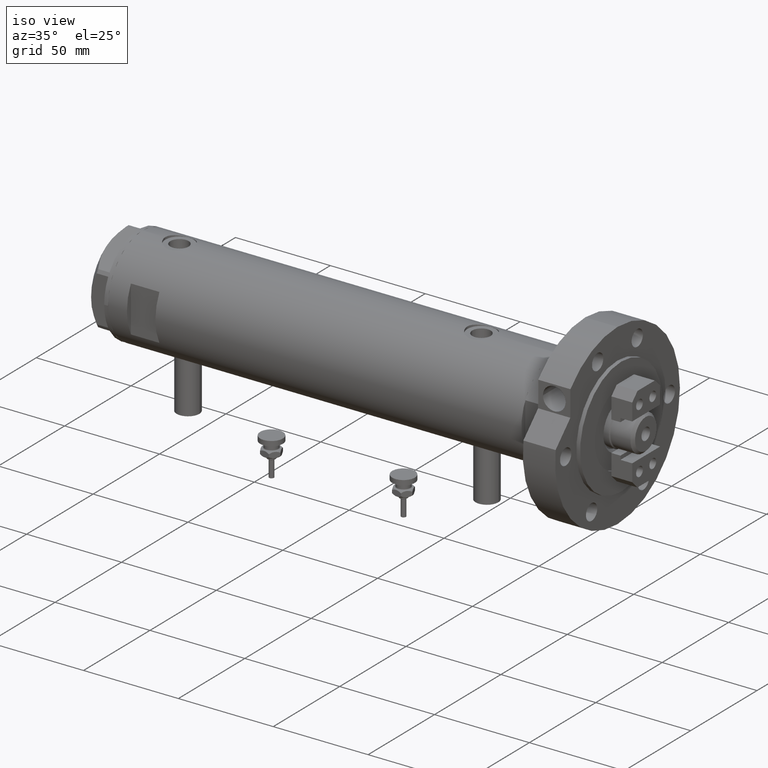
[diagram: clean part render]
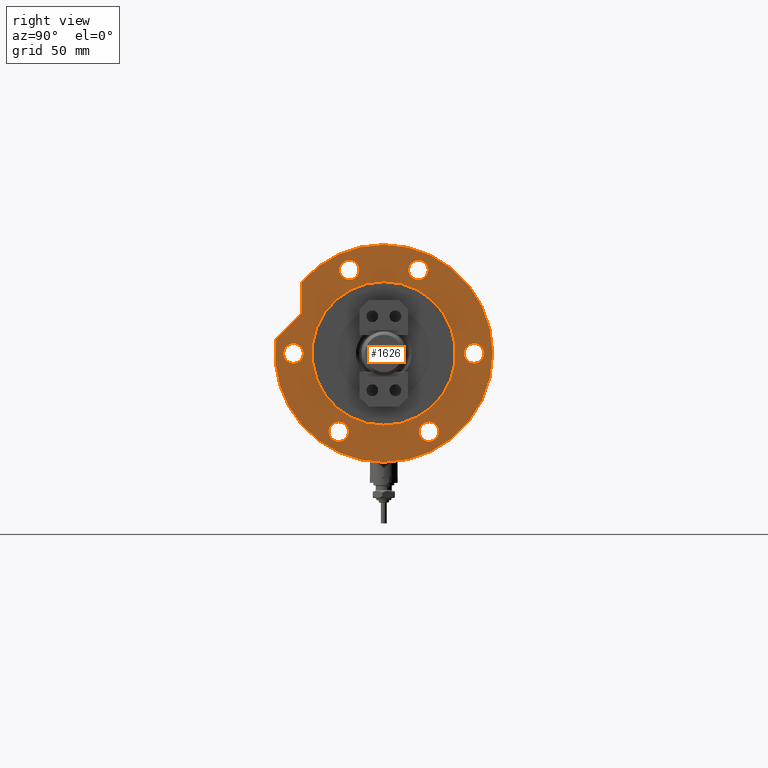
[diagram: tour spotlight — one face highlighted and labeled with its STEP entity id]
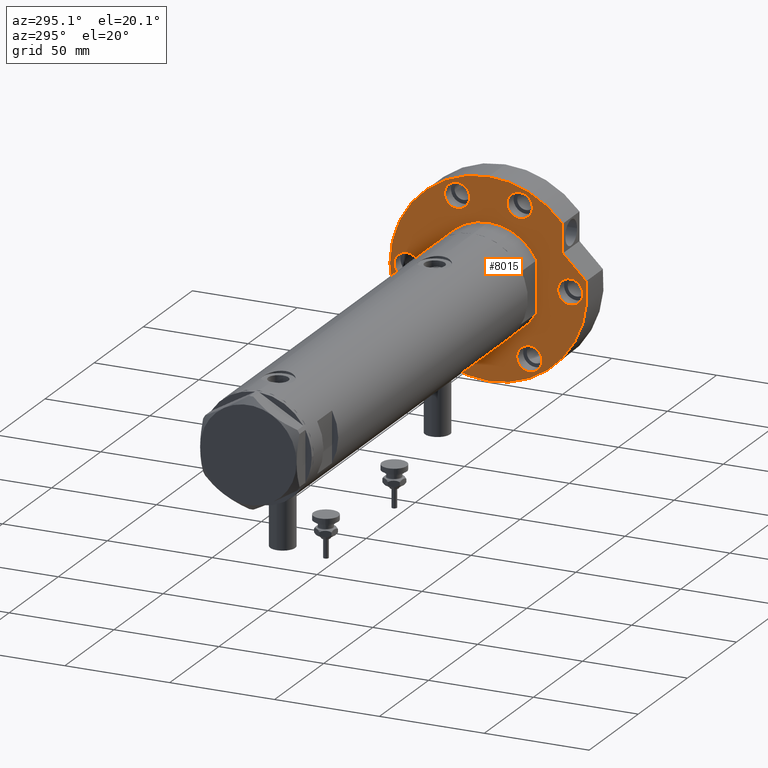
[diagram: tour spotlight — one face highlighted and labeled with its STEP entity id]
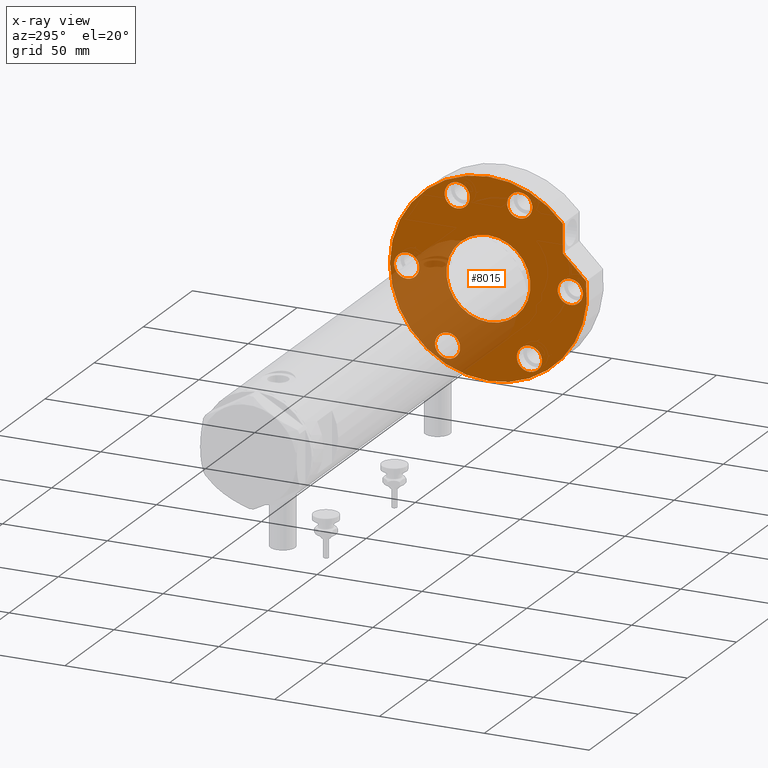
[diagram: x-ray of the same camera — body ghosted, this tour face saturated]
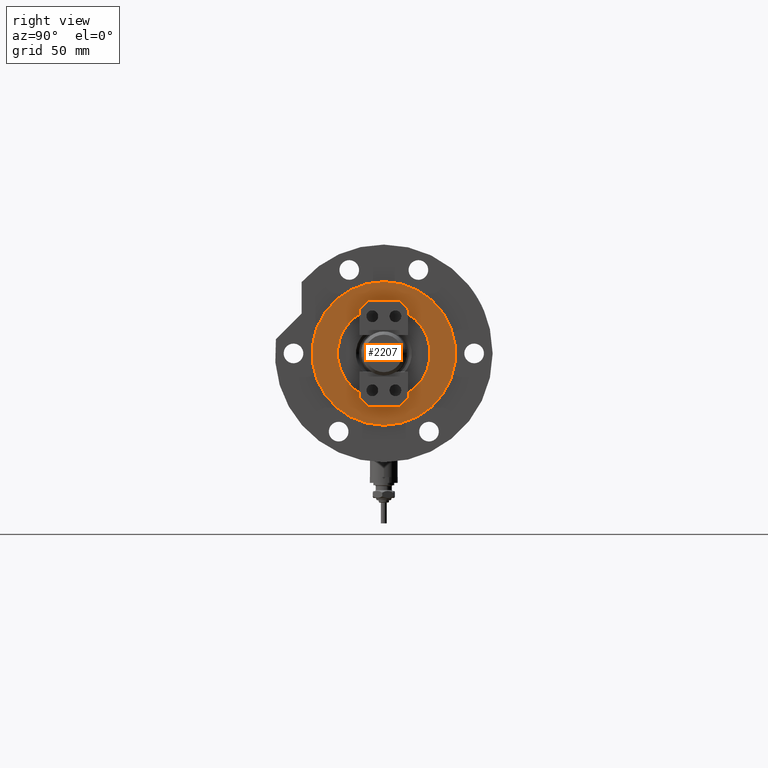
[diagram: tour spotlight — one face highlighted and labeled with its STEP entity id]
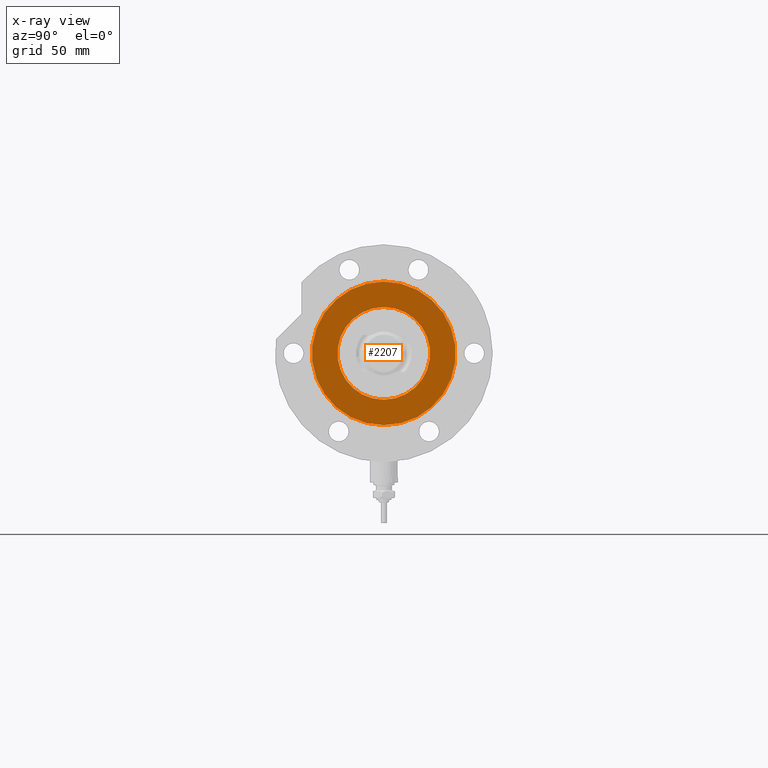
[diagram: x-ray of the same camera — body ghosted, this tour face saturated]
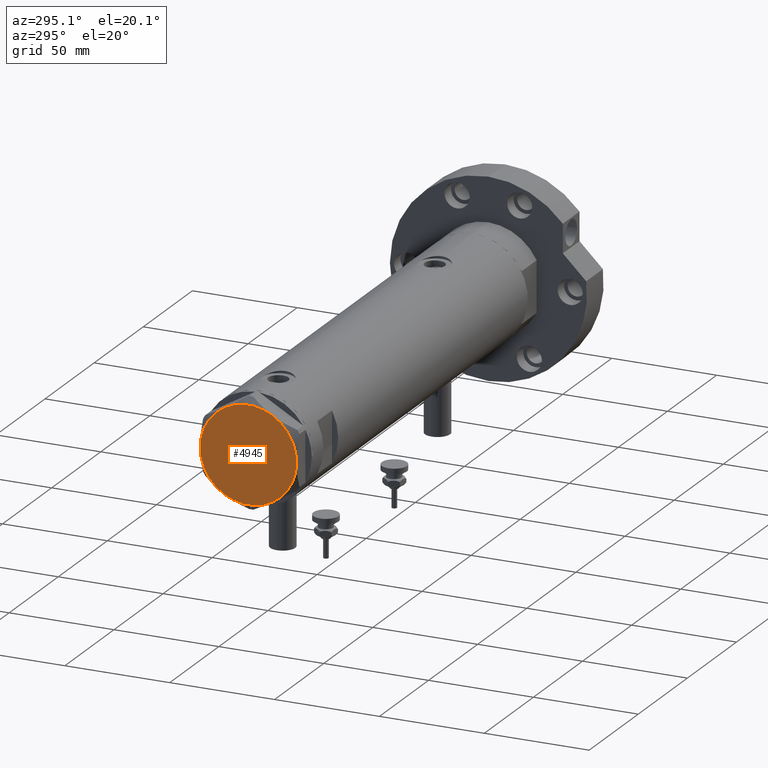
[diagram: tour spotlight — one face highlighted and labeled with its STEP entity id]
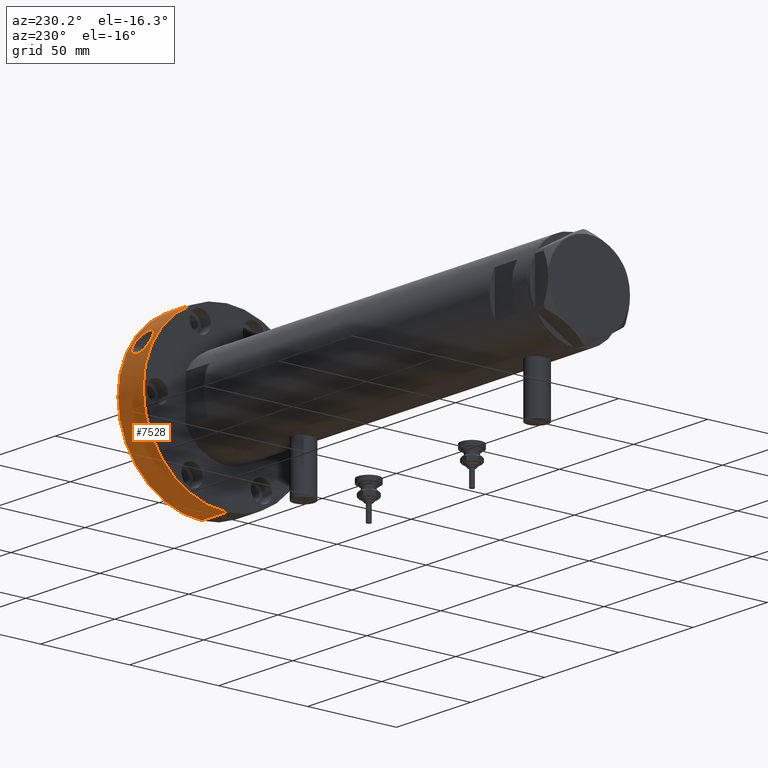
[diagram: tour spotlight — one face highlighted and labeled with its STEP entity id]
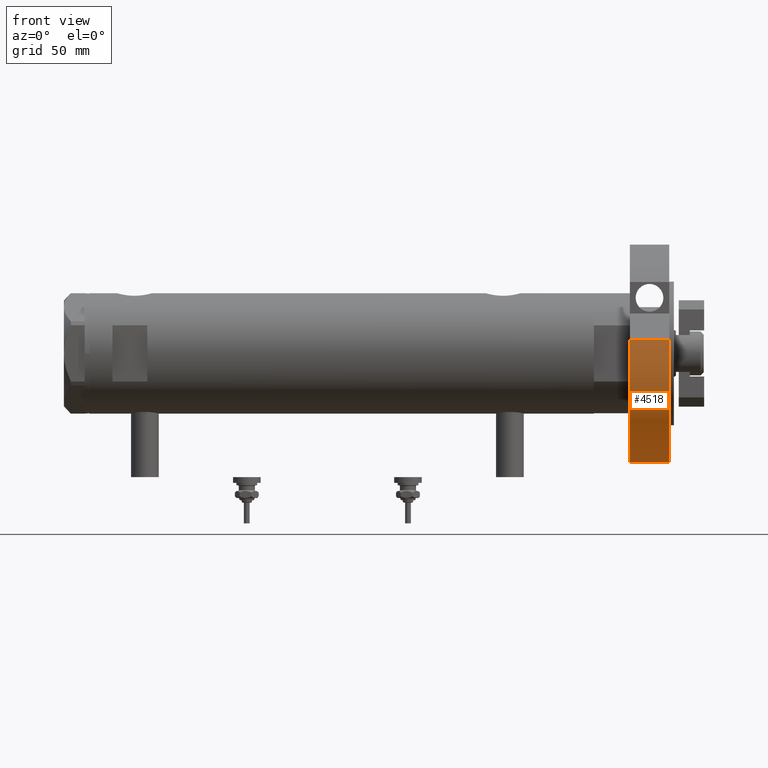
[diagram: tour spotlight — one face highlighted and labeled with its STEP entity id]
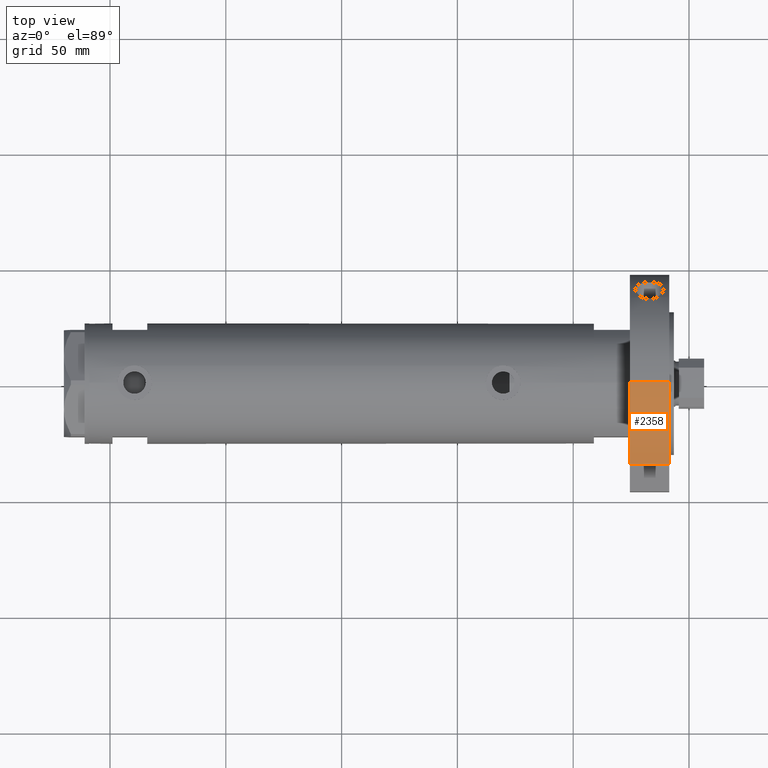
[diagram: tour spotlight — one face highlighted and labeled with its STEP entity id]
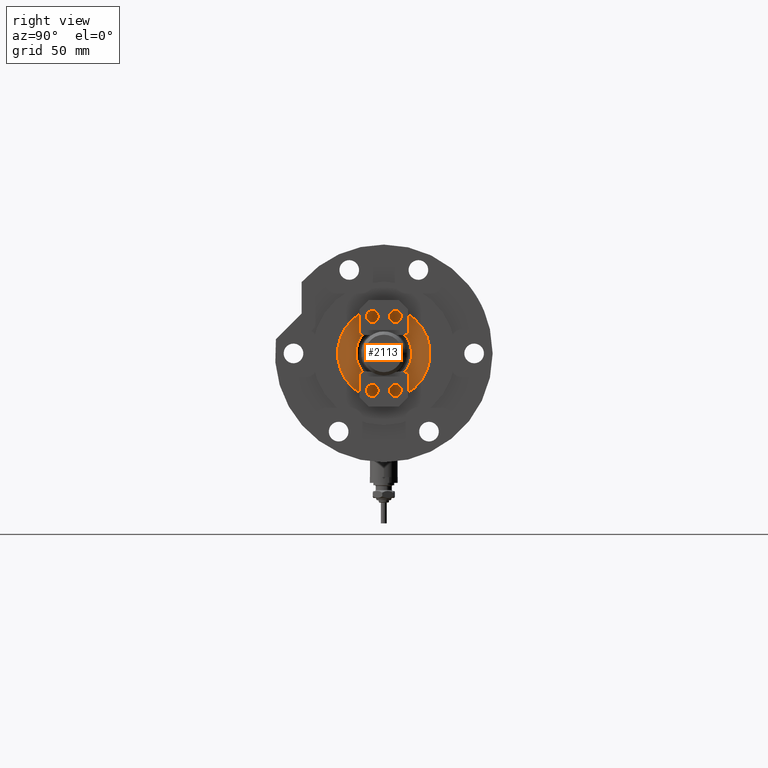
[diagram: tour spotlight — one face highlighted and labeled with its STEP entity id]
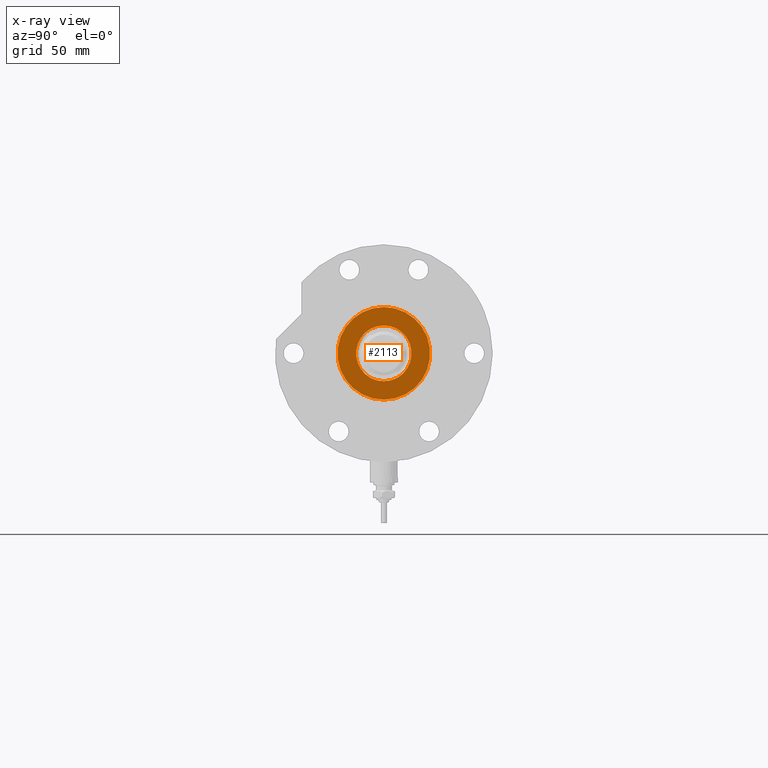
[diagram: x-ray of the same camera — body ghosted, this tour face saturated]
A machine part: a face-by-face anatomy tour. The part has 310 B-rep faces; the first image is the clean iso view, then the 8 largest visible faces are spotlighted one at a time (largest first), each with its STEP entity span.

Face 1 — right view, entity #1626. In plain terms, the highlighted planar face has unit normal (1, 0, -0).
Definition (entity closure, byte-faithful):
#2 = ORIENTED_EDGE ( 'NONE', *, *, #1232, .F. ) ;
#66 = EDGE_CURVE ( 'NONE', #510, #5742, #7749, .T. ) ;
#79 = VERTEX_POINT ( 'NONE', #2354 ) ;
#114 = FACE_BOUND ( 'NONE', #1176, .T. ) ;
#172 = DIRECTION ( 'NONE',  ( 0.000000000000000000, 0.000000000000000000, 1.000000000000000000 ) ) ;
#228 = EDGE_LOOP ( 'NONE', ( #4058, #845 ) ) ;
#386 = CARTESIAN_POINT ( 'NONE',  ( 36.03130176794011419, -14.92465386223865842, 17.00000000000000000 ) ) ;
#396 = DIRECTION ( 'NONE',  ( 0.000000000000000000, 0.000000000000000000, 1.000000000000000000 ) ) ;
#458 = CARTESIAN_POINT ( 'NONE',  ( 36.03130176794011419, -14.92465386223865842, 17.00000000000000000 ) ) ;
#510 = VERTEX_POINT ( 'NONE', #4915 ) ;
#666 = CIRCLE ( 'NONE', #5577, 4.250000000000000888 ) ;
#676 = EDGE_LOOP ( 'NONE', ( #3252, #7343, #3379, #3823, #7986 ) ) ;
#721 = CARTESIAN_POINT ( 'NONE',  ( 0.000000000000000000, 0.000000000000000000, 17.00000000000000000 ) ) ;
#728 = DIRECTION ( 'NONE',  ( 1.000000000000000000, 0.000000000000000000, 0.000000000000000000 ) ) ;
#732 = AXIS2_PLACEMENT_3D ( 'NONE', #7992, #3132, #8546 ) ;
#755 = CIRCLE ( 'NONE', #8320, 4.250000000000000888 ) ;
#845 = ORIENTED_EDGE ( 'NONE', *, *, #66, .F. ) ;
#906 = AXIS2_PLACEMENT_3D ( 'NONE', #5873, #396, #6544 ) ;
#912 = AXIS2_PLACEMENT_3D ( 'NONE', #8586, #4645, #8030 ) ;
#935 = CARTESIAN_POINT ( 'NONE',  ( 0.000000000000000000, 39.00000000000000000, 17.00000000000000000 ) ) ;
#999 = VERTEX_POINT ( 'NONE', #4135 ) ;
#1004 = CARTESIAN_POINT ( 'NONE',  ( -4.250000000000000888, -39.00000000000000000, 17.00000000000000000 ) ) ;
#1040 = CIRCLE ( 'NONE', #6951, 4.250000000000003553 ) ;
#1076 = CARTESIAN_POINT ( 'NONE',  ( -38.02499074759315079, 19.49999999999992539, 17.00000000000000000 ) ) ;
#1160 = DIRECTION ( 'NONE',  ( 0.000000000000000000, 0.000000000000000000, 1.000000000000000000 ) ) ;
#1176 = EDGE_LOOP ( 'NONE', ( #2616, #4289 ) ) ;
#1178 = AXIS2_PLACEMENT_3D ( 'NONE', #3234, #8646, #728 ) ;
#1215 = LINE ( 'NONE', #5881, #5533 ) ;
#1232 = EDGE_CURVE ( 'NONE', #999, #7020, #5970, .T. ) ;
#1275 = VERTEX_POINT ( 'NONE', #8280 ) ;
#1357 = CIRCLE ( 'NONE', #2468, 46.99999999999999289 ) ;
#1397 = CARTESIAN_POINT ( 'NONE',  ( -33.77499074759315079, 19.49999999999992539, 17.00000000000000000 ) ) ;
#1420 = VERTEX_POINT ( 'NONE', #4083 ) ;
#1477 = CARTESIAN_POINT ( 'NONE',  ( -29.52499074759301578, -19.50000000000015277, 17.00000000000000000 ) ) ;
#1480 = AXIS2_PLACEMENT_3D ( 'NONE', #3528, #2794, #3620 ) ;
#1483 = EDGE_CURVE ( 'NONE', #6658, #2800, #6832, .T. ) ;
#1484 = FACE_BOUND ( 'NONE', #6869, .T. ) ;
#1492 = CIRCLE ( 'NONE', #912, 4.249999999999996447 ) ;
#1528 = DIRECTION ( 'NONE',  ( 1.000000000000000000, 0.000000000000000000, 0.000000000000000000 ) ) ;
#1626 = ADVANCED_FACE ( 'NONE', ( #1484, #4900, #114, #4206, #4291, #7590, #6891, #4166 ), #6928, .T. ) ;
#1660 = CARTESIAN_POINT ( 'NONE',  ( 0.000000000000000000, 0.000000000000000000, 17.00000000000000000 ) ) ;
#1704 = ORIENTED_EDGE ( 'NONE', *, *, #2662, .F. ) ;
#1710 = CIRCLE ( 'NONE', #3107, 4.250000000000003553 ) ;
#1768 = CARTESIAN_POINT ( 'NONE',  ( -38.02499074759302289, -19.50000000000015277, 17.00000000000000000 ) ) ;
#1875 = EDGE_CURVE ( 'NONE', #2528, #1420, #1040, .T. ) ;
#1981 = ORIENTED_EDGE ( 'NONE', *, *, #2485, .F. ) ;
#2205 = DIRECTION ( 'NONE',  ( 0.000000000000000000, 0.000000000000000000, 1.000000000000000000 ) ) ;
#2274 = CIRCLE ( 'NONE', #732, 46.99999999999999289 ) ;
#2312 = CARTESIAN_POINT ( 'NONE',  ( 0.000000000000000000, -39.00000000000000000, 17.00000000000000000 ) ) ;
#2324 = AXIS2_PLACEMENT_3D ( 'NONE', #5207, #1160, #8396 ) ;
#2354 = CARTESIAN_POINT ( 'NONE',  ( -4.250000000000000888, 39.00000000000000000, 17.00000000000000000 ) ) ;
#2361 = ORIENTED_EDGE ( 'NONE', *, *, #1483, .F. ) ;
#2402 = EDGE_CURVE ( 'NONE', #2831, #4631, #6260, .T. ) ;
#2468 = AXIS2_PLACEMENT_3D ( 'NONE', #721, #4736, #4116 ) ;
#2485 = EDGE_CURVE ( 'NONE', #1420, #2528, #3152, .T. ) ;
#2491 = CARTESIAN_POINT ( 'NONE',  ( 30.83217135699462830, 35.47361286101148892, 17.00000000000000000 ) ) ;
#2496 = DIRECTION ( 'NONE',  ( 1.000000000000000000, -1.019675812477181804E-15, 0.000000000000000000 ) ) ;
#2528 = VERTEX_POINT ( 'NONE', #5119 ) ;
#2582 = EDGE_CURVE ( 'NONE', #7907, #4195, #1357, .T. ) ;
#2598 = EDGE_CURVE ( 'NONE', #4631, #2831, #8645, .T. ) ;
#2616 = ORIENTED_EDGE ( 'NONE', *, *, #4783, .F. ) ;
#2662 = EDGE_CURVE ( 'NONE', #2800, #6658, #1492, .T. ) ;
#2794 = DIRECTION ( 'NONE',  ( 0.000000000000000000, 0.000000000000000000, 1.000000000000000000 ) ) ;
#2799 = CARTESIAN_POINT ( 'NONE',  ( 6.092310621118299352, 46.60347359688769586, 17.00000000000000000 ) ) ;
#2800 = VERTEX_POINT ( 'NONE', #3454 ) ;
#2831 = VERTEX_POINT ( 'NONE', #1477 ) ;
#2929 = ORIENTED_EDGE ( 'NONE', *, *, #8167, .F. ) ;
#2957 = DIRECTION ( 'NONE',  ( 0.000000000000000000, 0.000000000000000000, 1.000000000000000000 ) ) ;
#2996 = AXIS2_PLACEMENT_3D ( 'NONE', #1397, #8032, #3455 ) ;
#3067 = DIRECTION ( 'NONE',  ( 0.000000000000000000, 0.000000000000000000, 1.000000000000000000 ) ) ;
#3107 = AXIS2_PLACEMENT_3D ( 'NONE', #386, #3067, #8526 ) ;
#3132 = DIRECTION ( 'NONE',  ( 0.000000000000000000, 0.000000000000000000, 1.000000000000000000 ) ) ;
#3152 = CIRCLE ( 'NONE', #906, 4.250000000000003553 ) ;
#3153 = DIRECTION ( 'NONE',  ( 0.000000000000000000, 0.000000000000000000, 1.000000000000000000 ) ) ;
#3234 = CARTESIAN_POINT ( 'NONE',  ( 0.000000000000000000, 39.00000000000000000, 17.00000000000000000 ) ) ;
#3252 = ORIENTED_EDGE ( 'NONE', *, *, #7823, .F. ) ;
#3323 = ORIENTED_EDGE ( 'NONE', *, *, #1875, .F. ) ;
#3379 = ORIENTED_EDGE ( 'NONE', *, *, #2582, .T. ) ;
#3454 = CARTESIAN_POINT ( 'NONE',  ( -29.52499074759315434, 19.49999999999992539, 17.00000000000000000 ) ) ;
#3455 = DIRECTION ( 'NONE',  ( 1.000000000000000000, 0.000000000000000000, 0.000000000000000000 ) ) ;
#3477 = AXIS2_PLACEMENT_3D ( 'NONE', #458, #3153, #7346 ) ;
#3528 = CARTESIAN_POINT ( 'NONE',  ( 0.000000000000000000, 0.000000000000000000, 17.00000000000000000 ) ) ;
#3564 = AXIS2_PLACEMENT_3D ( 'NONE', #6870, #2205, #4184 ) ;
#3616 = CIRCLE ( 'NONE', #4758, 46.99999999999999289 ) ;
#3620 = DIRECTION ( 'NONE',  ( 1.000000000000000000, 0.000000000000000000, -0.000000000000000000 ) ) ;
#3823 = ORIENTED_EDGE ( 'NONE', *, *, #6019, .T. ) ;
#3901 = VERTEX_POINT ( 'NONE', #8563 ) ;
#3992 = DIRECTION ( 'NONE',  ( 1.000000000000000000, 0.000000000000000000, 0.000000000000000000 ) ) ;
#4058 = ORIENTED_EDGE ( 'NONE', *, *, #4357, .F. ) ;
#4083 = CARTESIAN_POINT ( 'NONE',  ( 31.78130176794011064, 14.92465386223865842, 17.00000000000000000 ) ) ;
#4116 = DIRECTION ( 'NONE',  ( 1.000000000000000000, 0.000000000000000000, 0.000000000000000000 ) ) ;
#4135 = CARTESIAN_POINT ( 'NONE',  ( 31.00000000000000711, 3.796405077356795904E-15, 17.00000000000000000 ) ) ;
#4166 = FACE_BOUND ( 'NONE', #5385, .T. ) ;
#4170 = CARTESIAN_POINT ( 'NONE',  ( 4.250000000000000888, 39.00000000000000000, 17.00000000000000000 ) ) ;
#4184 = DIRECTION ( 'NONE',  ( 1.000000000000000000, 0.000000000000000000, 0.000000000000000000 ) ) ;
#4195 = VERTEX_POINT ( 'NONE', #7016 ) ;
#4206 = FACE_BOUND ( 'NONE', #228, .T. ) ;
#4276 = CARTESIAN_POINT ( 'NONE',  ( 36.03130176794011419, 14.92465386223865842, 17.00000000000000000 ) ) ;
#4289 = ORIENTED_EDGE ( 'NONE', *, *, #6242, .F. ) ;
#4291 = FACE_BOUND ( 'NONE', #6777, .T. ) ;
#4336 = EDGE_LOOP ( 'NONE', ( #2361, #1704 ) ) ;
#4357 = EDGE_CURVE ( 'NONE', #5742, #510, #666, .T. ) ;
#4631 = VERTEX_POINT ( 'NONE', #1768 ) ;
#4645 = DIRECTION ( 'NONE',  ( 0.000000000000000000, 0.000000000000000000, 1.000000000000000000 ) ) ;
#4736 = DIRECTION ( 'NONE',  ( 0.000000000000000000, 0.000000000000000000, 1.000000000000000000 ) ) ;
#4758 = AXIS2_PLACEMENT_3D ( 'NONE', #5959, #5866, #8429 ) ;
#4783 = EDGE_CURVE ( 'NONE', #5178, #4999, #5313, .T. ) ;
#4827 = VECTOR ( 'NONE', #5211, 999.9999999999998863 ) ;
#4853 = DIRECTION ( 'NONE',  ( 1.000000000000000000, 0.000000000000000000, 0.000000000000000000 ) ) ;
#4855 = AXIS2_PLACEMENT_3D ( 'NONE', #8682, #7945, #3992 ) ;
#4900 = FACE_BOUND ( 'NONE', #7787, .T. ) ;
#4915 = CARTESIAN_POINT ( 'NONE',  ( 4.250000000000000888, -39.00000000000000000, 17.00000000000000000 ) ) ;
#4999 = VERTEX_POINT ( 'NONE', #6078 ) ;
#5047 = ORIENTED_EDGE ( 'NONE', *, *, #7447, .F. ) ;
#5068 = ORIENTED_EDGE ( 'NONE', *, *, #2598, .F. ) ;
#5119 = CARTESIAN_POINT ( 'NONE',  ( 40.28130176794012129, 14.92465386223865842, 17.00000000000000000 ) ) ;
#5178 = VERTEX_POINT ( 'NONE', #8381 ) ;
#5207 = CARTESIAN_POINT ( 'NONE',  ( -33.77499074759302289, -19.50000000000015277, 17.00000000000000000 ) ) ;
#5211 = DIRECTION ( 'NONE',  ( 0.7071067811865511255, -0.7071067811865440200, 0.000000000000000000 ) ) ;
#5313 = CIRCLE ( 'NONE', #3477, 4.250000000000003553 ) ;
#5316 = EDGE_CURVE ( 'NONE', #1275, #8521, #3616, .T. ) ;
#5385 = EDGE_LOOP ( 'NONE', ( #2929, #2 ) ) ;
#5414 = CARTESIAN_POINT ( 'NONE',  ( -31.00000000000000711, 0.000000000000000000, 17.00000000000000000 ) ) ;
#5486 = DIRECTION ( 'NONE',  ( 1.000000000000000000, 0.000000000000000000, 0.000000000000000000 ) ) ;
#5529 = AXIS2_PLACEMENT_3D ( 'NONE', #1660, #2957, #5486 ) ;
#5533 = VECTOR ( 'NONE', #2496, 1000.000000000000000 ) ;
#5567 = DIRECTION ( 'NONE',  ( 1.000000000000000000, 0.000000000000000000, 0.000000000000000000 ) ) ;
#5577 = AXIS2_PLACEMENT_3D ( 'NONE', #2312, #7553, #5567 ) ;
#5686 = DIRECTION ( 'NONE',  ( 0.000000000000000000, 0.000000000000000000, 1.000000000000000000 ) ) ;
#5742 = VERTEX_POINT ( 'NONE', #1004 ) ;
#5783 = AXIS2_PLACEMENT_3D ( 'NONE', #7709, #5686, #7588 ) ;
#5866 = DIRECTION ( 'NONE',  ( 0.000000000000000000, 0.000000000000000000, 1.000000000000000000 ) ) ;
#5873 = CARTESIAN_POINT ( 'NONE',  ( 36.03130176794011419, 14.92465386223865842, 17.00000000000000000 ) ) ;
#5881 = CARTESIAN_POINT ( 'NONE',  ( 3.617158501555293296E-14, 35.47361286101151734, 17.00000000000000000 ) ) ;
#5914 = VERTEX_POINT ( 'NONE', #4170 ) ;
#5959 = CARTESIAN_POINT ( 'NONE',  ( 0.000000000000000000, 0.000000000000000000, 17.00000000000000000 ) ) ;
#5970 = CIRCLE ( 'NONE', #5529, 31.00000000000000711 ) ;
#6019 = EDGE_CURVE ( 'NONE', #4195, #1275, #2274, .T. ) ;
#6078 = CARTESIAN_POINT ( 'NONE',  ( 40.28130176794012129, -14.92465386223865842, 17.00000000000000000 ) ) ;
#6235 = CIRCLE ( 'NONE', #1178, 4.250000000000000888 ) ;
#6242 = EDGE_CURVE ( 'NONE', #4999, #5178, #1710, .T. ) ;
#6260 = CIRCLE ( 'NONE', #2324, 4.250000000000003553 ) ;
#6544 = DIRECTION ( 'NONE',  ( 1.000000000000000000, 0.000000000000000000, 0.000000000000000000 ) ) ;
#6658 = VERTEX_POINT ( 'NONE', #1076 ) ;
#6777 = EDGE_LOOP ( 'NONE', ( #5068, #7118 ) ) ;
#6832 = CIRCLE ( 'NONE', #2996, 4.249999999999996447 ) ;
#6869 = EDGE_LOOP ( 'NONE', ( #7878, #5047 ) ) ;
#6870 = CARTESIAN_POINT ( 'NONE',  ( 0.000000000000000000, 0.000000000000000000, 17.00000000000000000 ) ) ;
#6891 = FACE_OUTER_BOUND ( 'NONE', #676, .T. ) ;
#6928 = PLANE ( 'NONE',  #1480 ) ;
#6951 = AXIS2_PLACEMENT_3D ( 'NONE', #4276, #172, #4853 ) ;
#7016 = CARTESIAN_POINT ( 'NONE',  ( -46.99999999999999289, 0.000000000000000000, 17.00000000000000000 ) ) ;
#7020 = VERTEX_POINT ( 'NONE', #5414 ) ;
#7118 = ORIENTED_EDGE ( 'NONE', *, *, #2402, .F. ) ;
#7193 = LINE ( 'NONE', #8495, #4827 ) ;
#7260 = DIRECTION ( 'NONE',  ( 0.000000000000000000, 0.000000000000000000, 1.000000000000000000 ) ) ;
#7343 = ORIENTED_EDGE ( 'NONE', *, *, #7833, .F. ) ;
#7346 = DIRECTION ( 'NONE',  ( 1.000000000000000000, 0.000000000000000000, 0.000000000000000000 ) ) ;
#7379 = CIRCLE ( 'NONE', #3564, 31.00000000000000711 ) ;
#7447 = EDGE_CURVE ( 'NONE', #5914, #79, #6235, .T. ) ;
#7481 = EDGE_CURVE ( 'NONE', #79, #5914, #755, .T. ) ;
#7553 = DIRECTION ( 'NONE',  ( 0.000000000000000000, 0.000000000000000000, 1.000000000000000000 ) ) ;
#7588 = DIRECTION ( 'NONE',  ( 1.000000000000000000, 0.000000000000000000, 0.000000000000000000 ) ) ;
#7590 = FACE_BOUND ( 'NONE', #4336, .T. ) ;
#7709 = CARTESIAN_POINT ( 'NONE',  ( 0.000000000000000000, -39.00000000000000000, 17.00000000000000000 ) ) ;
#7749 = CIRCLE ( 'NONE', #5783, 4.250000000000000888 ) ;
#7787 = EDGE_LOOP ( 'NONE', ( #1981, #3323 ) ) ;
#7823 = EDGE_CURVE ( 'NONE', #3901, #8521, #1215, .T. ) ;
#7833 = EDGE_CURVE ( 'NONE', #7907, #3901, #7193, .T. ) ;
#7878 = ORIENTED_EDGE ( 'NONE', *, *, #7481, .F. ) ;
#7907 = VERTEX_POINT ( 'NONE', #2799 ) ;
#7945 = DIRECTION ( 'NONE',  ( 0.000000000000000000, 0.000000000000000000, 1.000000000000000000 ) ) ;
#7986 = ORIENTED_EDGE ( 'NONE', *, *, #5316, .T. ) ;
#7992 = CARTESIAN_POINT ( 'NONE',  ( 0.000000000000000000, 0.000000000000000000, 17.00000000000000000 ) ) ;
#8030 = DIRECTION ( 'NONE',  ( 1.000000000000000000, 0.000000000000000000, 0.000000000000000000 ) ) ;
#8032 = DIRECTION ( 'NONE',  ( 0.000000000000000000, 0.000000000000000000, 1.000000000000000000 ) ) ;
#8167 = EDGE_CURVE ( 'NONE', #7020, #999, #7379, .T. ) ;
#8280 = CARTESIAN_POINT ( 'NONE',  ( 46.99999999999999289, 5.755839955992559063E-15, 17.00000000000000000 ) ) ;
#8320 = AXIS2_PLACEMENT_3D ( 'NONE', #935, #7260, #1528 ) ;
#8381 = CARTESIAN_POINT ( 'NONE',  ( 31.78130176794011064, -14.92465386223865842, 17.00000000000000000 ) ) ;
#8396 = DIRECTION ( 'NONE',  ( 1.000000000000000000, 0.000000000000000000, 0.000000000000000000 ) ) ;
#8429 = DIRECTION ( 'NONE',  ( 1.000000000000000000, 0.000000000000000000, 0.000000000000000000 ) ) ;
#8495 = CARTESIAN_POINT ( 'NONE',  ( 26.34789210900296652, 26.34789210900323297, 17.00000000000000000 ) ) ;
#8521 = VERTEX_POINT ( 'NONE', #2491 ) ;
#8526 = DIRECTION ( 'NONE',  ( 1.000000000000000000, 0.000000000000000000, 0.000000000000000000 ) ) ;
#8546 = DIRECTION ( 'NONE',  ( 1.000000000000000000, 0.000000000000000000, 0.000000000000000000 ) ) ;
#8563 = CARTESIAN_POINT ( 'NONE',  ( 17.22217135699461110, 35.47361286101150313, 17.00000000000000000 ) ) ;
#8586 = CARTESIAN_POINT ( 'NONE',  ( -33.77499074759315079, 19.49999999999992539, 17.00000000000000000 ) ) ;
#8645 = CIRCLE ( 'NONE', #4855, 4.250000000000003553 ) ;
#8646 = DIRECTION ( 'NONE',  ( 0.000000000000000000, 0.000000000000000000, 1.000000000000000000 ) ) ;
#8682 = CARTESIAN_POINT ( 'NONE',  ( -33.77499074759302289, -19.50000000000015277, 17.00000000000000000 ) ) ;

Face 2 — auxiliary view, entity #8015. An x-ray twin of the same camera follows (body ghosted, this face saturated) — the face is partly hidden behind the body. In plain terms, the highlighted planar face has unit normal (1, 0, -0).
Definition (entity closure, byte-faithful):
#32 = CARTESIAN_POINT ( 'NONE',  ( -39.77499074759315079, 19.49999999999992539, 0.000000000000000000 ) ) ;
#39 = CIRCLE ( 'NONE', #3418, 46.99999999999999289 ) ;
#82 = CIRCLE ( 'NONE', #2873, 20.00000000000000000 ) ;
#181 = AXIS2_PLACEMENT_3D ( 'NONE', #5172, #3859, #8548 ) ;
#356 = CARTESIAN_POINT ( 'NONE',  ( -33.77499074759302289, -19.50000000000015277, 0.000000000000000000 ) ) ;
#394 = DIRECTION ( 'NONE',  ( 0.000000000000000000, 0.000000000000000000, -1.000000000000000000 ) ) ;
#409 = ORIENTED_EDGE ( 'NONE', *, *, #3535, .F. ) ;
#437 = DIRECTION ( 'NONE',  ( -1.000000000000000000, 0.000000000000000000, 0.000000000000000000 ) ) ;
#446 = EDGE_LOOP ( 'NONE', ( #7106, #5542 ) ) ;
#521 = VERTEX_POINT ( 'NONE', #826 ) ;
#547 = DIRECTION ( 'NONE',  ( -1.000000000000000000, 0.000000000000000000, 0.000000000000000000 ) ) ;
#639 = EDGE_CURVE ( 'NONE', #5323, #3611, #5659, .T. ) ;
#697 = VERTEX_POINT ( 'NONE', #6375 ) ;
#716 = FACE_BOUND ( 'NONE', #8142, .T. ) ;
#792 = AXIS2_PLACEMENT_3D ( 'NONE', #3614, #3651, #6348 ) ;
#822 = CARTESIAN_POINT ( 'NONE',  ( 0.000000000000000000, 0.000000000000000000, 0.000000000000000000 ) ) ;
#824 = ORIENTED_EDGE ( 'NONE', *, *, #6981, .F. ) ;
#826 = CARTESIAN_POINT ( 'NONE',  ( 17.22217135699460755, 35.47361286101150313, 0.000000000000000000 ) ) ;
#996 = VERTEX_POINT ( 'NONE', #8096 ) ;
#1025 = AXIS2_PLACEMENT_3D ( 'NONE', #2278, #2963, #1799 ) ;
#1029 = EDGE_CURVE ( 'NONE', #4919, #3311, #1173, .T. ) ;
#1049 = CARTESIAN_POINT ( 'NONE',  ( -20.00000000000000000, 2.449293598294706513E-15, 0.000000000000000000 ) ) ;
#1074 = FACE_BOUND ( 'NONE', #446, .T. ) ;
#1089 = AXIS2_PLACEMENT_3D ( 'NONE', #1502, #6872, #2038 ) ;
#1173 = CIRCLE ( 'NONE', #6104, 5.999999999999998224 ) ;
#1228 = DIRECTION ( 'NONE',  ( 0.000000000000000000, 0.000000000000000000, -1.000000000000000000 ) ) ;
#1276 = ORIENTED_EDGE ( 'NONE', *, *, #2837, .T. ) ;
#1306 = ORIENTED_EDGE ( 'NONE', *, *, #3606, .F. ) ;
#1325 = CARTESIAN_POINT ( 'NONE',  ( -6.000000000000000000, -39.00000000000000000, 0.000000000000000000 ) ) ;
#1356 = CARTESIAN_POINT ( 'NONE',  ( 0.000000000000000000, 0.000000000000000000, 0.000000000000000000 ) ) ;
#1473 = EDGE_CURVE ( 'NONE', #7714, #6305, #8071, .T. ) ;
#1494 = CARTESIAN_POINT ( 'NONE',  ( -33.77499074759315079, 19.49999999999992539, 0.000000000000000000 ) ) ;
#1502 = CARTESIAN_POINT ( 'NONE',  ( 0.000000000000000000, -39.00000000000000000, 0.000000000000000000 ) ) ;
#1503 = AXIS2_PLACEMENT_3D ( 'NONE', #356, #8400, #3080 ) ;
#1620 = DIRECTION ( 'NONE',  ( 0.000000000000000000, 0.000000000000000000, 1.000000000000000000 ) ) ;
#1627 = VECTOR ( 'NONE', #4933, 999.9999999999998863 ) ;
#1681 = CARTESIAN_POINT ( 'NONE',  ( -27.77499074759315434, 19.49999999999992539, 0.000000000000000000 ) ) ;
#1716 = CARTESIAN_POINT ( 'NONE',  ( 42.03130176794011419, 14.92465386223865842, 0.000000000000000000 ) ) ;
#1726 = CIRCLE ( 'NONE', #7068, 5.999999999999998224 ) ;
#1734 = VERTEX_POINT ( 'NONE', #3569 ) ;
#1777 = EDGE_CURVE ( 'NONE', #6305, #7714, #2314, .T. ) ;
#1783 = FACE_BOUND ( 'NONE', #7692, .T. ) ;
#1789 = CARTESIAN_POINT ( 'NONE',  ( 6.000000000000000000, -39.00000000000000000, 0.000000000000000000 ) ) ;
#1799 = DIRECTION ( 'NONE',  ( -1.000000000000000000, 0.000000000000000000, 0.000000000000000000 ) ) ;
#1823 = CARTESIAN_POINT ( 'NONE',  ( 20.00000000000000000, 0.000000000000000000, 0.000000000000000000 ) ) ;
#1912 = AXIS2_PLACEMENT_3D ( 'NONE', #1356, #6099, #2631 ) ;
#1922 = DIRECTION ( 'NONE',  ( 1.000000000000000000, 0.000000000000000000, 0.000000000000000000 ) ) ;
#2038 = DIRECTION ( 'NONE',  ( -1.000000000000000000, 0.000000000000000000, 0.000000000000000000 ) ) ;
#2078 = DIRECTION ( 'NONE',  ( -1.000000000000000000, 0.000000000000000000, 0.000000000000000000 ) ) ;
#2278 = CARTESIAN_POINT ( 'NONE',  ( -33.77499074759302289, -19.50000000000015277, 0.000000000000000000 ) ) ;
#2314 = CIRCLE ( 'NONE', #4150, 5.999999999999998224 ) ;
#2382 = DIRECTION ( 'NONE',  ( 0.000000000000000000, 0.000000000000000000, 1.000000000000000000 ) ) ;
#2399 = ORIENTED_EDGE ( 'NONE', *, *, #2665, .T. ) ;
#2445 = CARTESIAN_POINT ( 'NONE',  ( 30.03130176794011774, 14.92465386223865842, 0.000000000000000000 ) ) ;
#2466 = CARTESIAN_POINT ( 'NONE',  ( 30.03130176794011774, -14.92465386223865842, 0.000000000000000000 ) ) ;
#2552 = CARTESIAN_POINT ( 'NONE',  ( 6.092310621118299352, 46.60347359688769586, 0.000000000000000000 ) ) ;
#2573 = ORIENTED_EDGE ( 'NONE', *, *, #8554, .T. ) ;
#2601 = ORIENTED_EDGE ( 'NONE', *, *, #8687, .T. ) ;
#2631 = DIRECTION ( 'NONE',  ( 1.000000000000000000, 0.000000000000000000, 0.000000000000000000 ) ) ;
#2665 = EDGE_CURVE ( 'NONE', #5646, #7179, #82, .T. ) ;
#2752 = CARTESIAN_POINT ( 'NONE',  ( 0.000000000000000000, 0.000000000000000000, 0.000000000000000000 ) ) ;
#2837 = EDGE_CURVE ( 'NONE', #4774, #521, #3524, .T. ) ;
#2861 = DIRECTION ( 'NONE',  ( -1.000000000000000000, 0.000000000000000000, 0.000000000000000000 ) ) ;
#2873 = AXIS2_PLACEMENT_3D ( 'NONE', #2752, #5261, #1922 ) ;
#2961 = ORIENTED_EDGE ( 'NONE', *, *, #639, .F. ) ;
#2963 = DIRECTION ( 'NONE',  ( 0.000000000000000000, 0.000000000000000000, -1.000000000000000000 ) ) ;
#2978 = CARTESIAN_POINT ( 'NONE',  ( -27.77499074759301578, -19.50000000000015277, 0.000000000000000000 ) ) ;
#3080 = DIRECTION ( 'NONE',  ( -1.000000000000000000, 0.000000000000000000, 0.000000000000000000 ) ) ;
#3125 = CIRCLE ( 'NONE', #7908, 5.999999999999998224 ) ;
#3147 = CIRCLE ( 'NONE', #1912, 20.00000000000000000 ) ;
#3184 = DIRECTION ( 'NONE',  ( 0.000000000000000000, 0.000000000000000000, -1.000000000000000000 ) ) ;
#3291 = CIRCLE ( 'NONE', #5111, 5.999999999999998224 ) ;
#3311 = VERTEX_POINT ( 'NONE', #2466 ) ;
#3418 = AXIS2_PLACEMENT_3D ( 'NONE', #8442, #1620, #6367 ) ;
#3524 = LINE ( 'NONE', #8267, #1627 ) ;
#3535 = EDGE_CURVE ( 'NONE', #3611, #5323, #8356, .T. ) ;
#3569 = CARTESIAN_POINT ( 'NONE',  ( -6.000000000000000888, 39.00000000000000000, 0.000000000000000000 ) ) ;
#3595 = LINE ( 'NONE', #4466, #7094 ) ;
#3606 = EDGE_CURVE ( 'NONE', #4788, #1734, #8233, .T. ) ;
#3611 = VERTEX_POINT ( 'NONE', #2978 ) ;
#3614 = CARTESIAN_POINT ( 'NONE',  ( 0.000000000000000000, 39.00000000000000000, 0.000000000000000000 ) ) ;
#3651 = DIRECTION ( 'NONE',  ( 0.000000000000000000, 0.000000000000000000, -1.000000000000000000 ) ) ;
#3664 = EDGE_LOOP ( 'NONE', ( #3678, #4643 ) ) ;
#3678 = ORIENTED_EDGE ( 'NONE', *, *, #4701, .F. ) ;
#3733 = VERTEX_POINT ( 'NONE', #4312 ) ;
#3778 = CARTESIAN_POINT ( 'NONE',  ( 6.000000000000000888, 39.00000000000000000, 0.000000000000000000 ) ) ;
#3797 = CARTESIAN_POINT ( 'NONE',  ( 0.000000000000000000, 0.000000000000000000, 0.000000000000000000 ) ) ;
#3859 = DIRECTION ( 'NONE',  ( 0.000000000000000000, 0.000000000000000000, 1.000000000000000000 ) ) ;
#3919 = CARTESIAN_POINT ( 'NONE',  ( 0.000000000000000000, -39.00000000000000000, 0.000000000000000000 ) ) ;
#3973 = FACE_BOUND ( 'NONE', #8533, .T. ) ;
#3997 = VERTEX_POINT ( 'NONE', #1325 ) ;
#4015 = CARTESIAN_POINT ( 'NONE',  ( 36.03130176794011419, -14.92465386223865842, 0.000000000000000000 ) ) ;
#4047 = DIRECTION ( 'NONE',  ( -1.000000000000000000, 0.000000000000000000, 0.000000000000000000 ) ) ;
#4139 = AXIS2_PLACEMENT_3D ( 'NONE', #3797, #2382, #5013 ) ;
#4150 = AXIS2_PLACEMENT_3D ( 'NONE', #6181, #7458, #2861 ) ;
#4269 = AXIS2_PLACEMENT_3D ( 'NONE', #7386, #6644, #4047 ) ;
#4312 = CARTESIAN_POINT ( 'NONE',  ( 46.99999999999999289, 5.755839955992559063E-15, 0.000000000000000000 ) ) ;
#4457 = FACE_OUTER_BOUND ( 'NONE', #7207, .T. ) ;
#4466 = CARTESIAN_POINT ( 'NONE',  ( 17.22217135699461110, 35.47361286101150313, 0.000000000000000000 ) ) ;
#4492 = FACE_BOUND ( 'NONE', #3664, .T. ) ;
#4546 = CIRCLE ( 'NONE', #7367, 6.000000000000000888 ) ;
#4569 = ORIENTED_EDGE ( 'NONE', *, *, #1029, .F. ) ;
#4571 = CARTESIAN_POINT ( 'NONE',  ( 36.03130176794011419, -14.92465386223865842, 0.000000000000000000 ) ) ;
#4604 = ORIENTED_EDGE ( 'NONE', *, *, #1777, .F. ) ;
#4643 = ORIENTED_EDGE ( 'NONE', *, *, #6915, .F. ) ;
#4701 = EDGE_CURVE ( 'NONE', #3997, #8095, #7980, .T. ) ;
#4724 = CARTESIAN_POINT ( 'NONE',  ( 42.03130176794011419, -14.92465386223865842, 0.000000000000000000 ) ) ;
#4774 = VERTEX_POINT ( 'NONE', #2552 ) ;
#4781 = CARTESIAN_POINT ( 'NONE',  ( 0.000000000000000000, 39.00000000000000000, 0.000000000000000000 ) ) ;
#4788 = VERTEX_POINT ( 'NONE', #3778 ) ;
#4919 = VERTEX_POINT ( 'NONE', #4724 ) ;
#4933 = DIRECTION ( 'NONE',  ( 0.7071067811865511255, -0.7071067811865440200, -0.000000000000000000 ) ) ;
#5013 = DIRECTION ( 'NONE',  ( 1.000000000000000000, 0.000000000000000000, -0.000000000000000000 ) ) ;
#5111 = AXIS2_PLACEMENT_3D ( 'NONE', #7239, #3184, #7290 ) ;
#5145 = FACE_BOUND ( 'NONE', #7939, .T. ) ;
#5172 = CARTESIAN_POINT ( 'NONE',  ( 0.000000000000000000, 0.000000000000000000, 0.000000000000000000 ) ) ;
#5221 = DIRECTION ( 'NONE',  ( -1.000000000000000000, 0.000000000000000000, 0.000000000000000000 ) ) ;
#5247 = AXIS2_PLACEMENT_3D ( 'NONE', #3919, #6607, #547 ) ;
#5261 = DIRECTION ( 'NONE',  ( 0.000000000000000000, 0.000000000000000000, 1.000000000000000000 ) ) ;
#5285 = DIRECTION ( 'NONE',  ( 0.000000000000000000, 0.000000000000000000, -1.000000000000000000 ) ) ;
#5323 = VERTEX_POINT ( 'NONE', #6586 ) ;
#5531 = DIRECTION ( 'NONE',  ( 1.000000000000000000, 0.000000000000000000, 0.000000000000000000 ) ) ;
#5542 = ORIENTED_EDGE ( 'NONE', *, *, #7053, .F. ) ;
#5646 = VERTEX_POINT ( 'NONE', #1823 ) ;
#5659 = CIRCLE ( 'NONE', #1025, 6.000000000000005329 ) ;
#5817 = PLANE ( 'NONE',  #4139 ) ;
#5981 = AXIS2_PLACEMENT_3D ( 'NONE', #822, #6834, #5531 ) ;
#6099 = DIRECTION ( 'NONE',  ( 0.000000000000000000, 0.000000000000000000, 1.000000000000000000 ) ) ;
#6104 = AXIS2_PLACEMENT_3D ( 'NONE', #4015, #5285, #2078 ) ;
#6120 = DIRECTION ( 'NONE',  ( 0.000000000000000000, 0.000000000000000000, -1.000000000000000000 ) ) ;
#6181 = CARTESIAN_POINT ( 'NONE',  ( 36.03130176794011419, 14.92465386223865842, 0.000000000000000000 ) ) ;
#6297 = VERTEX_POINT ( 'NONE', #1681 ) ;
#6305 = VERTEX_POINT ( 'NONE', #1716 ) ;
#6348 = DIRECTION ( 'NONE',  ( -1.000000000000000000, 0.000000000000000000, 0.000000000000000000 ) ) ;
#6367 = DIRECTION ( 'NONE',  ( 1.000000000000000000, 0.000000000000000000, 0.000000000000000000 ) ) ;
#6375 = CARTESIAN_POINT ( 'NONE',  ( -46.99999999999999289, 0.000000000000000000, 0.000000000000000000 ) ) ;
#6414 = ORIENTED_EDGE ( 'NONE', *, *, #7841, .F. ) ;
#6454 = DIRECTION ( 'NONE',  ( 1.000000000000000000, -1.019675812477181606E-15, 0.000000000000000000 ) ) ;
#6539 = CIRCLE ( 'NONE', #181, 46.99999999999999289 ) ;
#6574 = EDGE_CURVE ( 'NONE', #4774, #697, #39, .T. ) ;
#6586 = CARTESIAN_POINT ( 'NONE',  ( -39.77499074759302289, -19.50000000000015277, 0.000000000000000000 ) ) ;
#6607 = DIRECTION ( 'NONE',  ( 0.000000000000000000, 0.000000000000000000, -1.000000000000000000 ) ) ;
#6644 = DIRECTION ( 'NONE',  ( 0.000000000000000000, 0.000000000000000000, -1.000000000000000000 ) ) ;
#6834 = DIRECTION ( 'NONE',  ( 0.000000000000000000, 0.000000000000000000, 1.000000000000000000 ) ) ;
#6872 = DIRECTION ( 'NONE',  ( 0.000000000000000000, 0.000000000000000000, -1.000000000000000000 ) ) ;
#6900 = EDGE_CURVE ( 'NONE', #3311, #4919, #3125, .T. ) ;
#6915 = EDGE_CURVE ( 'NONE', #8095, #3997, #8315, .T. ) ;
#6981 = EDGE_CURVE ( 'NONE', #1734, #4788, #4546, .T. ) ;
#7013 = ORIENTED_EDGE ( 'NONE', *, *, #6574, .F. ) ;
#7053 = EDGE_CURVE ( 'NONE', #6297, #8113, #1726, .T. ) ;
#7068 = AXIS2_PLACEMENT_3D ( 'NONE', #1494, #6120, #7476 ) ;
#7094 = VECTOR ( 'NONE', #6454, 1000.000000000000000 ) ;
#7106 = ORIENTED_EDGE ( 'NONE', *, *, #8105, .F. ) ;
#7179 = VERTEX_POINT ( 'NONE', #1049 ) ;
#7207 = EDGE_LOOP ( 'NONE', ( #1276, #2573, #8539, #6414, #7013 ) ) ;
#7239 = CARTESIAN_POINT ( 'NONE',  ( -33.77499074759315079, 19.49999999999992539, 0.000000000000000000 ) ) ;
#7290 = DIRECTION ( 'NONE',  ( -1.000000000000000000, 0.000000000000000000, 0.000000000000000000 ) ) ;
#7367 = AXIS2_PLACEMENT_3D ( 'NONE', #4781, #394, #437 ) ;
#7386 = CARTESIAN_POINT ( 'NONE',  ( 36.03130176794011419, 14.92465386223865842, 0.000000000000000000 ) ) ;
#7458 = DIRECTION ( 'NONE',  ( 0.000000000000000000, 0.000000000000000000, -1.000000000000000000 ) ) ;
#7476 = DIRECTION ( 'NONE',  ( -1.000000000000000000, 0.000000000000000000, 0.000000000000000000 ) ) ;
#7692 = EDGE_LOOP ( 'NONE', ( #2399, #2601 ) ) ;
#7714 = VERTEX_POINT ( 'NONE', #2445 ) ;
#7841 = EDGE_CURVE ( 'NONE', #697, #3733, #6539, .T. ) ;
#7908 = AXIS2_PLACEMENT_3D ( 'NONE', #4571, #1228, #5221 ) ;
#7936 = CIRCLE ( 'NONE', #5981, 46.99999999999999289 ) ;
#7939 = EDGE_LOOP ( 'NONE', ( #8155, #4569 ) ) ;
#7980 = CIRCLE ( 'NONE', #1089, 6.000000000000000000 ) ;
#8015 = ADVANCED_FACE ( 'NONE', ( #716, #8183, #5145, #4492, #3973, #1074, #1783, #4457 ), #5817, .F. ) ;
#8071 = CIRCLE ( 'NONE', #4269, 5.999999999999998224 ) ;
#8095 = VERTEX_POINT ( 'NONE', #1789 ) ;
#8096 = CARTESIAN_POINT ( 'NONE',  ( 30.83217135699462830, 35.47361286101148892, 0.000000000000000000 ) ) ;
#8105 = EDGE_CURVE ( 'NONE', #8113, #6297, #3291, .T. ) ;
#8113 = VERTEX_POINT ( 'NONE', #32 ) ;
#8142 = EDGE_LOOP ( 'NONE', ( #824, #1306 ) ) ;
#8155 = ORIENTED_EDGE ( 'NONE', *, *, #6900, .F. ) ;
#8183 = FACE_BOUND ( 'NONE', #8559, .T. ) ;
#8233 = CIRCLE ( 'NONE', #792, 6.000000000000000888 ) ;
#8267 = CARTESIAN_POINT ( 'NONE',  ( 17.22217135699461110, 35.47361286101150313, 0.000000000000000000 ) ) ;
#8315 = CIRCLE ( 'NONE', #5247, 6.000000000000000000 ) ;
#8323 = EDGE_CURVE ( 'NONE', #3733, #996, #7936, .T. ) ;
#8356 = CIRCLE ( 'NONE', #1503, 6.000000000000005329 ) ;
#8400 = DIRECTION ( 'NONE',  ( 0.000000000000000000, 0.000000000000000000, -1.000000000000000000 ) ) ;
#8442 = CARTESIAN_POINT ( 'NONE',  ( 0.000000000000000000, 0.000000000000000000, 0.000000000000000000 ) ) ;
#8506 = ORIENTED_EDGE ( 'NONE', *, *, #1473, .F. ) ;
#8533 = EDGE_LOOP ( 'NONE', ( #2961, #409 ) ) ;
#8539 = ORIENTED_EDGE ( 'NONE', *, *, #8323, .F. ) ;
#8548 = DIRECTION ( 'NONE',  ( 1.000000000000000000, 0.000000000000000000, 0.000000000000000000 ) ) ;
#8554 = EDGE_CURVE ( 'NONE', #521, #996, #3595, .T. ) ;
#8559 = EDGE_LOOP ( 'NONE', ( #8506, #4604 ) ) ;
#8687 = EDGE_CURVE ( 'NONE', #7179, #5646, #3147, .T. ) ;

Face 3 — right view, entity #2207. An x-ray twin of the same camera follows (body ghosted, this face saturated) — the face is partly hidden behind the body. In plain terms, the highlighted planar face has unit normal (1, 0, -0).
Definition (entity closure, byte-faithful):
#44 = FACE_OUTER_BOUND ( 'NONE', #3826, .T. ) ;
#56 = CIRCLE ( 'NONE', #3855, 20.00000000000000000 ) ;
#145 = DIRECTION ( 'NONE',  ( 1.000000000000000000, 0.000000000000000000, 0.000000000000000000 ) ) ;
#246 = CARTESIAN_POINT ( 'NONE',  ( 0.000000000000000000, 0.000000000000000000, 19.00000000000000355 ) ) ;
#277 = CARTESIAN_POINT ( 'NONE',  ( 0.000000000000000000, 0.000000000000000000, 19.00000000000000355 ) ) ;
#747 = CIRCLE ( 'NONE', #7757, 20.00000000000000000 ) ;
#871 = CARTESIAN_POINT ( 'NONE',  ( 31.00000000000000711, 3.796405077356795904E-15, 19.00000000000000355 ) ) ;
#1123 = CARTESIAN_POINT ( 'NONE',  ( 20.00000000000000000, 0.000000000000000000, 19.00000000000000355 ) ) ;
#1179 = ORIENTED_EDGE ( 'NONE', *, *, #7212, .T. ) ;
#1218 = DIRECTION ( 'NONE',  ( 0.000000000000000000, 0.000000000000000000, 1.000000000000000000 ) ) ;
#1519 = EDGE_CURVE ( 'NONE', #2398, #3242, #2307, .T. ) ;
#1580 = DIRECTION ( 'NONE',  ( 0.000000000000000000, 0.000000000000000000, 1.000000000000000000 ) ) ;
#2025 = AXIS2_PLACEMENT_3D ( 'NONE', #277, #1580, #3677 ) ;
#2184 = AXIS2_PLACEMENT_3D ( 'NONE', #6875, #5421, #4768 ) ;
#2207 = ADVANCED_FACE ( 'NONE', ( #7532, #44 ), #2741, .T. ) ;
#2266 = CARTESIAN_POINT ( 'NONE',  ( 0.000000000000000000, 0.000000000000000000, 19.00000000000000355 ) ) ;
#2307 = CIRCLE ( 'NONE', #7225, 31.00000000000000711 ) ;
#2398 = VERTEX_POINT ( 'NONE', #7627 ) ;
#2741 = PLANE ( 'NONE',  #2184 ) ;
#3242 = VERTEX_POINT ( 'NONE', #871 ) ;
#3329 = DIRECTION ( 'NONE',  ( 1.000000000000000000, 0.000000000000000000, 0.000000000000000000 ) ) ;
#3677 = DIRECTION ( 'NONE',  ( 1.000000000000000000, 0.000000000000000000, 0.000000000000000000 ) ) ;
#3730 = ORIENTED_EDGE ( 'NONE', *, *, #7162, .F. ) ;
#3826 = EDGE_LOOP ( 'NONE', ( #8364, #1179 ) ) ;
#3849 = ORIENTED_EDGE ( 'NONE', *, *, #7484, .F. ) ;
#3855 = AXIS2_PLACEMENT_3D ( 'NONE', #6460, #1218, #3329 ) ;
#4768 = DIRECTION ( 'NONE',  ( 1.000000000000000000, 0.000000000000000000, -0.000000000000000000 ) ) ;
#4937 = DIRECTION ( 'NONE',  ( 0.000000000000000000, 0.000000000000000000, 1.000000000000000000 ) ) ;
#5340 = VERTEX_POINT ( 'NONE', #8628 ) ;
#5421 = DIRECTION ( 'NONE',  ( 0.000000000000000000, 0.000000000000000000, 1.000000000000000000 ) ) ;
#5652 = CIRCLE ( 'NONE', #2025, 31.00000000000000711 ) ;
#6376 = EDGE_LOOP ( 'NONE', ( #3849, #3730 ) ) ;
#6460 = CARTESIAN_POINT ( 'NONE',  ( 0.000000000000000000, 0.000000000000000000, 19.00000000000000355 ) ) ;
#6875 = CARTESIAN_POINT ( 'NONE',  ( 0.000000000000000000, 0.000000000000000000, 19.00000000000000355 ) ) ;
#7039 = DIRECTION ( 'NONE',  ( 1.000000000000000000, 0.000000000000000000, 0.000000000000000000 ) ) ;
#7162 = EDGE_CURVE ( 'NONE', #5340, #8655, #747, .T. ) ;
#7212 = EDGE_CURVE ( 'NONE', #3242, #2398, #5652, .T. ) ;
#7225 = AXIS2_PLACEMENT_3D ( 'NONE', #2266, #4937, #145 ) ;
#7484 = EDGE_CURVE ( 'NONE', #8655, #5340, #56, .T. ) ;
#7532 = FACE_BOUND ( 'NONE', #6376, .T. ) ;
#7627 = CARTESIAN_POINT ( 'NONE',  ( -31.00000000000000711, 0.000000000000000000, 19.00000000000000355 ) ) ;
#7757 = AXIS2_PLACEMENT_3D ( 'NONE', #246, #8253, #7039 ) ;
#8253 = DIRECTION ( 'NONE',  ( 0.000000000000000000, 0.000000000000000000, 1.000000000000000000 ) ) ;
#8364 = ORIENTED_EDGE ( 'NONE', *, *, #1519, .T. ) ;
#8628 = CARTESIAN_POINT ( 'NONE',  ( -20.00000000000000000, 2.449293598294706513E-15, 19.00000000000000355 ) ) ;
#8655 = VERTEX_POINT ( 'NONE', #1123 ) ;

Face 4 — auxiliary view, entity #4945. In plain terms, the highlighted planar face has unit normal (-1, -0, 0).
Definition (entity closure, byte-faithful):
#162 = ORIENTED_EDGE ( 'NONE', *, *, #6783, .T. ) ;
#366 = DIRECTION ( 'NONE',  ( 1.000000000000000000, 0.000000000000000000, 0.000000000000000000 ) ) ;
#404 = ORIENTED_EDGE ( 'NONE', *, *, #5349, .T. ) ;
#445 = CARTESIAN_POINT ( 'NONE',  ( 0.000000000000000000, 0.000000000000000000, 9.000000000000000000 ) ) ;
#520 = CIRCLE ( 'NONE', #1655, 23.00000000000004619 ) ;
#692 = ORIENTED_EDGE ( 'NONE', *, *, #1447, .T. ) ;
#746 = PLANE ( 'NONE',  #6292 ) ;
#797 = DIRECTION ( 'NONE',  ( 1.000000000000000000, 0.000000000000000000, 0.000000000000000000 ) ) ;
#1063 = CARTESIAN_POINT ( 'NONE',  ( 0.000000000000000000, 0.000000000000000000, 9.000000000000000000 ) ) ;
#1287 = FACE_OUTER_BOUND ( 'NONE', #7040, .T. ) ;
#1447 = EDGE_CURVE ( 'NONE', #6863, #8560, #6237, .T. ) ;
#1640 = DIRECTION ( 'NONE',  ( 1.000000000000000000, 0.000000000000000000, 0.000000000000000000 ) ) ;
#1655 = AXIS2_PLACEMENT_3D ( 'NONE', #5912, #3758, #6449 ) ;
#1771 = AXIS2_PLACEMENT_3D ( 'NONE', #7608, #2933, #797 ) ;
#1974 = DIRECTION ( 'NONE',  ( 0.000000000000000000, 0.000000000000000000, 1.000000000000000000 ) ) ;
#2248 = VERTEX_POINT ( 'NONE', #6911 ) ;
#2277 = ORIENTED_EDGE ( 'NONE', *, *, #3180, .T. ) ;
#2586 = DIRECTION ( 'NONE',  ( 1.000000000000000000, 0.000000000000000000, 0.000000000000000000 ) ) ;
#2933 = DIRECTION ( 'NONE',  ( 0.000000000000000000, 0.000000000000000000, 1.000000000000000000 ) ) ;
#2964 = CIRCLE ( 'NONE', #8595, 23.00000000000004619 ) ;
#3135 = CARTESIAN_POINT ( 'NONE',  ( 11.50000000000018296, -19.91858428704203732, 9.000000000000000000 ) ) ;
#3180 = EDGE_CURVE ( 'NONE', #5308, #2248, #8219, .T. ) ;
#3471 = CIRCLE ( 'NONE', #8668, 23.00000000000004619 ) ;
#3586 = CARTESIAN_POINT ( 'NONE',  ( -11.50000000000004441, 19.91858428704211548, 9.000000000000000000 ) ) ;
#3758 = DIRECTION ( 'NONE',  ( 0.000000000000000000, 0.000000000000000000, 1.000000000000000000 ) ) ;
#4242 = EDGE_CURVE ( 'NONE', #7808, #5308, #3471, .T. ) ;
#4694 = CARTESIAN_POINT ( 'NONE',  ( -11.49999999999990585, -19.91858428704219364, 9.000000000000000000 ) ) ;
#4702 = AXIS2_PLACEMENT_3D ( 'NONE', #8035, #1974, #2586 ) ;
#4945 = ADVANCED_FACE ( 'NONE', ( #1287 ), #746, .T. ) ;
#5308 = VERTEX_POINT ( 'NONE', #7228 ) ;
#5349 = EDGE_CURVE ( 'NONE', #6339, #7808, #520, .T. ) ;
#5613 = DIRECTION ( 'NONE',  ( 1.000000000000000000, 0.000000000000000000, 0.000000000000000000 ) ) ;
#5617 = CARTESIAN_POINT ( 'NONE',  ( -23.00000000000004619, -8.112498833180673323E-14, 9.000000000000000000 ) ) ;
#5912 = CARTESIAN_POINT ( 'NONE',  ( 0.000000000000000000, 0.000000000000000000, 9.000000000000000000 ) ) ;
#6003 = CARTESIAN_POINT ( 'NONE',  ( 0.000000000000000000, 0.000000000000000000, 9.000000000000000000 ) ) ;
#6237 = CIRCLE ( 'NONE', #4702, 23.00000000000004619 ) ;
#6292 = AXIS2_PLACEMENT_3D ( 'NONE', #6003, #6755, #8667 ) ;
#6339 = VERTEX_POINT ( 'NONE', #4694 ) ;
#6449 = DIRECTION ( 'NONE',  ( 1.000000000000000000, 0.000000000000000000, 0.000000000000000000 ) ) ;
#6456 = ORIENTED_EDGE ( 'NONE', *, *, #4242, .T. ) ;
#6458 = DIRECTION ( 'NONE',  ( 0.000000000000000000, 0.000000000000000000, 1.000000000000000000 ) ) ;
#6755 = DIRECTION ( 'NONE',  ( 0.000000000000000000, 0.000000000000000000, 1.000000000000000000 ) ) ;
#6783 = EDGE_CURVE ( 'NONE', #2248, #6863, #2964, .T. ) ;
#6863 = VERTEX_POINT ( 'NONE', #3586 ) ;
#6906 = ORIENTED_EDGE ( 'NONE', *, *, #7332, .T. ) ;
#6911 = CARTESIAN_POINT ( 'NONE',  ( 11.49999999999990408, 19.91858428704219364, 9.000000000000000000 ) ) ;
#6940 = CARTESIAN_POINT ( 'NONE',  ( 0.000000000000000000, 0.000000000000000000, 9.000000000000000000 ) ) ;
#7040 = EDGE_LOOP ( 'NONE', ( #6456, #2277, #162, #692, #6906, #404 ) ) ;
#7228 = CARTESIAN_POINT ( 'NONE',  ( 22.99999999999995026, 2.373657066004705010E-13, 9.000000000000000000 ) ) ;
#7332 = EDGE_CURVE ( 'NONE', #8560, #6339, #7500, .T. ) ;
#7500 = CIRCLE ( 'NONE', #8069, 23.00000000000004619 ) ;
#7608 = CARTESIAN_POINT ( 'NONE',  ( 0.000000000000000000, 0.000000000000000000, 9.000000000000000000 ) ) ;
#7808 = VERTEX_POINT ( 'NONE', #3135 ) ;
#8035 = CARTESIAN_POINT ( 'NONE',  ( 0.000000000000000000, 0.000000000000000000, 9.000000000000000000 ) ) ;
#8069 = AXIS2_PLACEMENT_3D ( 'NONE', #1063, #8299, #1640 ) ;
#8219 = CIRCLE ( 'NONE', #1771, 23.00000000000004619 ) ;
#8299 = DIRECTION ( 'NONE',  ( 0.000000000000000000, 0.000000000000000000, 1.000000000000000000 ) ) ;
#8324 = DIRECTION ( 'NONE',  ( 0.000000000000000000, 0.000000000000000000, 1.000000000000000000 ) ) ;
#8560 = VERTEX_POINT ( 'NONE', #5617 ) ;
#8595 = AXIS2_PLACEMENT_3D ( 'NONE', #445, #6458, #5613 ) ;
#8667 = DIRECTION ( 'NONE',  ( 1.000000000000000000, 0.000000000000000000, -0.000000000000000000 ) ) ;
#8668 = AXIS2_PLACEMENT_3D ( 'NONE', #6940, #8324, #366 ) ;

Face 5 — auxiliary view, entity #7528. In plain terms, the highlighted cylindrical surface (partial cylindrical patch) has radius 47 mm, axis along (-1, -0, 0).
Definition (entity closure, byte-faithful):
#22 = CARTESIAN_POINT ( 'NONE',  ( 29.31675751850648481, -36.73658539730946160, 5.637549649425810827 ) ) ;
#58 = CARTESIAN_POINT ( 'NONE',  ( 26.54578786497548748, -38.78779996430838395, 3.041680177170769994 ) ) ;
#75 = CARTESIAN_POINT ( 'NONE',  ( 29.97032196796284254, -36.20470555948930524, 7.647497300397265718 ) ) ;
#181 = AXIS2_PLACEMENT_3D ( 'NONE', #5172, #3859, #8548 ) ;
#327 = VERTEX_POINT ( 'NONE', #5113 ) ;
#332 = B_SPLINE_CURVE_WITH_KNOTS ( 'NONE', 3,
 ( #7999, #1978, #1224, #4611, #3917, #7297, #648, #7340, #545, #3235, #5927, #5276, #7955, #1270, #5518, #817, #730, #4088, #75, #2109, #2763, #3501, #8159, #689, #22, #7942, #6803, #2098, #4158, #4849, #2900, #58, #7457, #7542, #3452, #2819, #2257 ),
 .UNSPECIFIED., .F., .F.,
 ( 4, 2, 2, 2, 2, 2, 2, 2, 1, 2, 2, 2, 2, 2, 2, 2, 2, 2, 4 ),
 ( 0.000000000000000000, 0.002590858275774001861, 0.003886287413661007346, 0.005181716551548013264, 0.006477145689435019615, 0.007772574827322024232, 0.009068003965209030584, 0.009715718534152534627, 0.01036343310309603867, 0.01101114767203954098, 0.01165886224098304329, 0.01230657680992654733, 0.01295429137887004964, 0.01424972051675705773, 0.01554514965464406408, 0.01684057879253107390, 0.01813600793041808198, 0.01943143706830509007, 0.02072686620619209469 ),
 .UNSPECIFIED. ) ;
#388 = CARTESIAN_POINT ( 'NONE',  ( 20.21272401400283769, -42.43285117394039219, 13.14819113384753280 ) ) ;
#430 = CARTESIAN_POINT ( 'NONE',  ( 19.66236114609360186, -42.68972582553552542, 4.378309165035071615 ) ) ;
#484 = CARTESIAN_POINT ( 'NONE',  ( 21.03196075421767830, -42.03201448647705263, 3.297495144850682181 ) ) ;
#545 = CARTESIAN_POINT ( 'NONE',  ( 28.62775077357292730, -37.27653358909616799, 12.37183459565619614 ) ) ;
#594 = ORIENTED_EDGE ( 'NONE', *, *, #7449, .T. ) ;
#648 = CARTESIAN_POINT ( 'NONE',  ( 27.80167932005601727, -37.89708657517680024, 13.17954559214630983 ) ) ;
#663 = ORIENTED_EDGE ( 'NONE', *, *, #7841, .T. ) ;
#689 = CARTESIAN_POINT ( 'NONE',  ( 29.57525022966999728, -36.52830160800778714, 6.206060862846801918 ) ) ;
#697 = VERTEX_POINT ( 'NONE', #6375 ) ;
#730 = CARTESIAN_POINT ( 'NONE',  ( 30.03890347158557717, -36.14780491510246208, 8.516879439139374952 ) ) ;
#732 = AXIS2_PLACEMENT_3D ( 'NONE', #7992, #3132, #8546 ) ;
#798 = EDGE_CURVE ( 'NONE', #327, #1265, #332, .T. ) ;
#817 = CARTESIAN_POINT ( 'NONE',  ( 30.01417878811716733, -36.16835727287583069, 8.950994580407639845 ) ) ;
#1016 = CARTESIAN_POINT ( 'NONE',  ( 18.07378821552540771, -43.38602448949230705, 7.645798885193620720 ) ) ;
#1070 = CARTESIAN_POINT ( 'NONE',  ( 18.37990569300471577, -43.25750819656069268, 6.432079339378294236 ) ) ;
#1114 = CARTESIAN_POINT ( 'NONE',  ( 22.22387659662646087, -41.41565468963003838, 14.23493286401424029 ) ) ;
#1224 = CARTESIAN_POINT ( 'NONE',  ( 25.50267567034118343, -39.48798466538580243, 14.36239607505751081 ) ) ;
#1239 = B_SPLINE_CURVE_WITH_KNOTS ( 'NONE', 3,
 ( #2756, #2227, #1648, #6587, #7188, #7779, #5322, #4211, #6484, #1860, #484, #1720, #2390, #6353, #430, #6534, #4404, #7836, #3031, #1070, #3120, #1016, #2524, #5064, #2427, #7707, #8530, #1819, #5811, #6404, #2350, #7103, #6448, #388, #3070, #3702, #5199, #1114, #1684, #7177, #8483, #5760 ),
 .UNSPECIFIED., .F., .F.,
 ( 4, 2, 2, 2, 2, 2, 2, 2, 2, 2, 2, 2, 2, 2, 2, 2, 2, 2, 2, 2, 4 ),
 ( 0.02072686620619209469, 0.02134575438690576241, 0.02196464256761943359, 0.02320241892904676209, 0.02382130710976043675, 0.02444019529047410794, 0.02567797165190146419, 0.02629685983261513885, 0.02691574801332881350, 0.02815352437475614894, 0.02939130073618348438, 0.03062907709761082328, 0.03124796527832449794, 0.03186685345903816913, 0.03310462982046551844, 0.03434240618189286776, 0.03558018254332021013, 0.03681795890474755945, 0.03805573526617490876, 0.03929351162760225114, 0.04053128798902960045 ),
 .UNSPECIFIED. ) ;
#1265 = VERTEX_POINT ( 'NONE', #2148 ) ;
#1270 = CARTESIAN_POINT ( 'NONE',  ( 29.92910341173029920, -36.23882543067242779, 9.601523201849401445 ) ) ;
#1275 = VERTEX_POINT ( 'NONE', #8280 ) ;
#1326 = DIRECTION ( 'NONE',  ( -0.000000000000000000, -0.000000000000000000, -1.000000000000000000 ) ) ;
#1559 = DIRECTION ( 'NONE',  ( -0.000000000000000000, -0.000000000000000000, -1.000000000000000000 ) ) ;
#1648 = CARTESIAN_POINT ( 'NONE',  ( 23.66899589303408291, -40.60569235240382113, 2.507946829848313630 ) ) ;
#1684 = CARTESIAN_POINT ( 'NONE',  ( 22.58512018499452267, -41.21992360527438137, 14.33559227998991403 ) ) ;
#1720 = CARTESIAN_POINT ( 'NONE',  ( 20.53911595780574473, -42.27622470733740556, 3.602771924492197630 ) ) ;
#1819 = CARTESIAN_POINT ( 'NONE',  ( 18.23828482956311703, -43.31712604007590528, 10.13129599087749355 ) ) ;
#1860 = CARTESIAN_POINT ( 'NONE',  ( 21.20104478827418149, -41.94701542928802951, 3.203876467467758449 ) ) ;
#1978 = CARTESIAN_POINT ( 'NONE',  ( 24.78256739165266254, -39.94492291971782549, 14.50000000000000178 ) ) ;
#2017 = LINE ( 'NONE', #2587, #5805 ) ;
#2098 = CARTESIAN_POINT ( 'NONE',  ( 28.37947888915565287, -37.46635966158473252, 4.352251824714793216 ) ) ;
#2109 = CARTESIAN_POINT ( 'NONE',  ( 29.93505335796162115, -36.23390833551685830, 7.430791403804969164 ) ) ;
#2148 = CARTESIAN_POINT ( 'NONE',  ( 24.02717135699463213, -40.39424509235963257, 2.499999999999736211 ) ) ;
#2227 = CARTESIAN_POINT ( 'NONE',  ( 23.84867510475768526, -40.50041764315914605, 2.499999999999998224 ) ) ;
#2257 = CARTESIAN_POINT ( 'NONE',  ( 24.02717135699463213, -40.39424509235963257, 2.499999999999736211 ) ) ;
#2265 = CARTESIAN_POINT ( 'NONE',  ( 0.000000000000000000, 0.000000000000000000, 17.00000000000000000 ) ) ;
#2274 = CIRCLE ( 'NONE', #732, 46.99999999999999289 ) ;
#2350 = CARTESIAN_POINT ( 'NONE',  ( 18.89934372347181579, -43.03349373518442889, 11.64189963461808119 ) ) ;
#2390 = CARTESIAN_POINT ( 'NONE',  ( 20.23073579459405380, -42.42425850356469397, 3.837340843451502614 ) ) ;
#2427 = CARTESIAN_POINT ( 'NONE',  ( 18.03697714177743450, -43.40124400545440153, 8.901350679141497579 ) ) ;
#2524 = CARTESIAN_POINT ( 'NONE',  ( 18.02860071031414435, -43.40471816190228793, 8.059134097202885982 ) ) ;
#2587 = CARTESIAN_POINT ( 'NONE',  ( -46.99999999999999289, 0.000000000000000000, 17.00000000000000000 ) ) ;
#2689 = CARTESIAN_POINT ( 'NONE',  ( 46.99999999999999289, 5.755839955992559063E-15, 17.00000000000000000 ) ) ;
#2756 = CARTESIAN_POINT ( 'NONE',  ( 24.02717135699463213, -40.39424509235963257, 2.499999999999736211 ) ) ;
#2763 = CARTESIAN_POINT ( 'NONE',  ( 29.84331302489164273, -36.30950564947118409, 7.010445416079292613 ) ) ;
#2793 = DIRECTION ( 'NONE',  ( -1.000000000000000000, 0.000000000000000000, 0.000000000000000000 ) ) ;
#2819 = CARTESIAN_POINT ( 'NONE',  ( 24.40079175136807521, -40.17200944424799758, 2.499999999999996447 ) ) ;
#2849 = AXIS2_PLACEMENT_3D ( 'NONE', #2265, #1559, #2793 ) ;
#2900 = CARTESIAN_POINT ( 'NONE',  ( 26.87697096579903544, -38.55879035659806675, 3.206729046138816486 ) ) ;
#2909 = FACE_BOUND ( 'NONE', #8601, .T. ) ;
#3031 = CARTESIAN_POINT ( 'NONE',  ( 18.71348014342003907, -43.11425065545132895, 5.683514419513962856 ) ) ;
#3070 = CARTESIAN_POINT ( 'NONE',  ( 20.52777748613927855, -42.28171852828032229, 13.38905983612584727 ) ) ;
#3120 = CARTESIAN_POINT ( 'NONE',  ( 18.24821789120786519, -43.31294824019133927, 6.833828576064998828 ) ) ;
#3132 = DIRECTION ( 'NONE',  ( 0.000000000000000000, 0.000000000000000000, 1.000000000000000000 ) ) ;
#3155 = FACE_OUTER_BOUND ( 'NONE', #4637, .T. ) ;
#3235 = CARTESIAN_POINT ( 'NONE',  ( 29.09619203813592492, -36.91205331125236455, 11.73441856266717842 ) ) ;
#3452 = CARTESIAN_POINT ( 'NONE',  ( 24.76924286835162192, -39.94583325522181383, 2.534594519234811383 ) ) ;
#3501 = CARTESIAN_POINT ( 'NONE',  ( 29.78669168220882923, -36.35602358118680399, 6.805088170814357795 ) ) ;
#3702 = CARTESIAN_POINT ( 'NONE',  ( 21.18233309422821620, -41.95762308461164736, 13.79674983393581122 ) ) ;
#3733 = VERTEX_POINT ( 'NONE', #4312 ) ;
#3859 = DIRECTION ( 'NONE',  ( 0.000000000000000000, 0.000000000000000000, 1.000000000000000000 ) ) ;
#3917 = CARTESIAN_POINT ( 'NONE',  ( 26.87168857717896842, -38.56244507085315831, 13.79591173760632294 ) ) ;
#4084 = DIRECTION ( 'NONE',  ( -0.000000000000000000, -0.000000000000000000, -1.000000000000000000 ) ) ;
#4088 = CARTESIAN_POINT ( 'NONE',  ( 30.01660631292541126, -36.16634138211271221, 8.082305199749599822 ) ) ;
#4158 = CARTESIAN_POINT ( 'NONE',  ( 27.81736732094568865, -37.88557777892318512, 3.833008427805284057 ) ) ;
#4195 = VERTEX_POINT ( 'NONE', #7016 ) ;
#4211 = CARTESIAN_POINT ( 'NONE',  ( 21.71267661231110324, -41.68450643737563155, 2.961265666633505322 ) ) ;
#4312 = CARTESIAN_POINT ( 'NONE',  ( 46.99999999999999289, 5.755839955992559063E-15, 0.000000000000000000 ) ) ;
#4404 = CARTESIAN_POINT ( 'NONE',  ( 19.27067138371621979, -42.86791348098176258, 4.837093711336181379 ) ) ;
#4611 = CARTESIAN_POINT ( 'NONE',  ( 26.53532195692805828, -38.79495506457328702, 13.96309259924651336 ) ) ;
#4637 = EDGE_LOOP ( 'NONE', ( #6987, #7882, #594, #663 ) ) ;
#4849 = CARTESIAN_POINT ( 'NONE',  ( 27.51268456965473774, -38.10779539452742881, 3.601911306876527608 ) ) ;
#5064 = CARTESIAN_POINT ( 'NONE',  ( 18.02650619172928614, -43.40558806295653937, 8.690579933985034700 ) ) ;
#5113 = CARTESIAN_POINT ( 'NONE',  ( 24.02717135699461792, -40.39424509235958993, 14.50000000000000355 ) ) ;
#5172 = CARTESIAN_POINT ( 'NONE',  ( 0.000000000000000000, 0.000000000000000000, 0.000000000000000000 ) ) ;
#5199 = CARTESIAN_POINT ( 'NONE',  ( 21.52213646932818492, -41.78462380048877378, 13.96499104840034278 ) ) ;
#5276 = CARTESIAN_POINT ( 'NONE',  ( 29.65160965477712551, -36.46686471878745550, 10.63065668969366406 ) ) ;
#5322 = CARTESIAN_POINT ( 'NONE',  ( 22.23294397957124602, -41.41074513208972974, 2.762526350977645428 ) ) ;
#5518 = CARTESIAN_POINT ( 'NONE',  ( 29.96557572758542065, -36.20863526091250861, 9.384877179738449371 ) ) ;
#5760 = CARTESIAN_POINT ( 'NONE',  ( 24.02717135699461792, -40.39424509235958993, 14.50000000000000355 ) ) ;
#5764 = ORIENTED_EDGE ( 'NONE', *, *, #798, .T. ) ;
#5805 = VECTOR ( 'NONE', #4084, 1000.000000000000000 ) ;
#5811 = CARTESIAN_POINT ( 'NONE',  ( 18.36727706950141936, -43.26286534832171071, 10.53348308639339059 ) ) ;
#5927 = CARTESIAN_POINT ( 'NONE',  ( 29.30266612877326438, -36.74784259358991534, 11.38845270133253251 ) ) ;
#5955 = VECTOR ( 'NONE', #1326, 1000.000000000000000 ) ;
#5994 = ORIENTED_EDGE ( 'NONE', *, *, #7616, .T. ) ;
#6019 = EDGE_CURVE ( 'NONE', #4195, #1275, #2274, .T. ) ;
#6150 = CYLINDRICAL_SURFACE ( 'NONE', #2849, 46.99999999999999289 ) ;
#6353 = CARTESIAN_POINT ( 'NONE',  ( 19.80040130649696906, -42.62592172837626947, 4.237049931371764444 ) ) ;
#6375 = CARTESIAN_POINT ( 'NONE',  ( -46.99999999999999289, 0.000000000000000000, 0.000000000000000000 ) ) ;
#6404 = CARTESIAN_POINT ( 'NONE',  ( 18.69803258059236128, -43.12094575389036066, 11.28742474518901240 ) ) ;
#6448 = CARTESIAN_POINT ( 'NONE',  ( 19.63685401476755743, -42.70240081328834236, 12.60862543726928031 ) ) ;
#6484 = CARTESIAN_POINT ( 'NONE',  ( 21.54090933315050194, -41.77350390666703817, 3.036080435890378570 ) ) ;
#6534 = CARTESIAN_POINT ( 'NONE',  ( 19.39788269217121908, -42.81055108217567096, 4.677750665647628203 ) ) ;
#6539 = CIRCLE ( 'NONE', #181, 46.99999999999999289 ) ;
#6587 = CARTESIAN_POINT ( 'NONE',  ( 23.30719735272933590, -40.81443579866633087, 2.540584903693111851 ) ) ;
#6803 = CARTESIAN_POINT ( 'NONE',  ( 28.64079073445342516, -37.26652642190276055, 4.643314444515149297 ) ) ;
#6987 = ORIENTED_EDGE ( 'NONE', *, *, #7004, .F. ) ;
#7004 = EDGE_CURVE ( 'NONE', #1275, #3733, #7354, .T. ) ;
#7016 = CARTESIAN_POINT ( 'NONE',  ( -46.99999999999999289, 0.000000000000000000, 17.00000000000000000 ) ) ;
#7103 = CARTESIAN_POINT ( 'NONE',  ( 19.37139224572991836, -42.82307717453483065, 12.30655624157119554 ) ) ;
#7177 = CARTESIAN_POINT ( 'NONE',  ( 23.30428300664192065, -40.81764507344394843, 14.46750209667907328 ) ) ;
#7188 = CARTESIAN_POINT ( 'NONE',  ( 23.12522330022868289, -40.91780061144128666, 2.565369706125670390 ) ) ;
#7297 = CARTESIAN_POINT ( 'NONE',  ( 27.50315184173289751, -38.11464883220152444, 13.40464259841227701 ) ) ;
#7340 = CARTESIAN_POINT ( 'NONE',  ( 28.36308941316638510, -37.47876335796586034, 12.66471750810946695 ) ) ;
#7354 = LINE ( 'NONE', #2689, #5955 ) ;
#7449 = EDGE_CURVE ( 'NONE', #4195, #697, #2017, .T. ) ;
#7457 = CARTESIAN_POINT ( 'NONE',  ( 25.85661671239456183, -39.25057517580857080, 2.773760911892531489 ) ) ;
#7528 = ADVANCED_FACE ( 'NONE', ( #3155, #2909 ), #6150, .T. ) ;
#7542 = CARTESIAN_POINT ( 'NONE',  ( 25.49612868421636591, -39.48585074230076941, 2.670857949173604418 ) ) ;
#7616 = EDGE_CURVE ( 'NONE', #1265, #327, #1239, .T. ) ;
#7707 = CARTESIAN_POINT ( 'NONE',  ( 18.07931100317254192, -43.38362639619419525, 9.316373881931792056 ) ) ;
#7779 = CARTESIAN_POINT ( 'NONE',  ( 22.58636251562916186, -41.21923903427862257, 2.664123204613364937 ) ) ;
#7836 = CARTESIAN_POINT ( 'NONE',  ( 18.91576861517780372, -43.02628063016280890, 5.331678691756593480 ) ) ;
#7841 = EDGE_CURVE ( 'NONE', #697, #3733, #6539, .T. ) ;
#7882 = ORIENTED_EDGE ( 'NONE', *, *, #6019, .F. ) ;
#7942 = CARTESIAN_POINT ( 'NONE',  ( 29.11125485298486382, -36.90018599321275161, 5.288831639457610478 ) ) ;
#7955 = CARTESIAN_POINT ( 'NONE',  ( 29.78825902155540817, -36.35484043375675611, 10.23045956120386180 ) ) ;
#7992 = CARTESIAN_POINT ( 'NONE',  ( 0.000000000000000000, 0.000000000000000000, 17.00000000000000000 ) ) ;
#7999 = CARTESIAN_POINT ( 'NONE',  ( 24.02717135699461792, -40.39424509235958993, 14.50000000000000355 ) ) ;
#8159 = CARTESIAN_POINT ( 'NONE',  ( 29.65294078200158623, -36.46519648906181743, 6.403450725137649790 ) ) ;
#8280 = CARTESIAN_POINT ( 'NONE',  ( 46.99999999999999289, 5.755839955992559063E-15, 17.00000000000000000 ) ) ;
#8483 = CARTESIAN_POINT ( 'NONE',  ( 23.66628270323901617, -40.60890768859712807, 14.50000000000000711 ) ) ;
#8530 = CARTESIAN_POINT ( 'NONE',  ( 18.11116049483393908, -43.37035826465339738, 9.521713726113931742 ) ) ;
#8546 = DIRECTION ( 'NONE',  ( 1.000000000000000000, 0.000000000000000000, 0.000000000000000000 ) ) ;
#8548 = DIRECTION ( 'NONE',  ( 1.000000000000000000, 0.000000000000000000, 0.000000000000000000 ) ) ;
#8601 = EDGE_LOOP ( 'NONE', ( #5764, #5994 ) ) ;

Face 6 — front view, entity #4518. In plain terms, the highlighted cylindrical surface (partial cylindrical patch) has radius 47 mm, axis along (-1, -0, 0).
Definition (entity closure, byte-faithful):
#39 = CIRCLE ( 'NONE', #3418, 46.99999999999999289 ) ;
#267 = ORIENTED_EDGE ( 'NONE', *, *, #6574, .T. ) ;
#460 = CARTESIAN_POINT ( 'NONE',  ( 0.000000000000000000, 0.000000000000000000, 17.00000000000000000 ) ) ;
#697 = VERTEX_POINT ( 'NONE', #6375 ) ;
#721 = CARTESIAN_POINT ( 'NONE',  ( 0.000000000000000000, 0.000000000000000000, 17.00000000000000000 ) ) ;
#1067 = EDGE_CURVE ( 'NONE', #4774, #7907, #4710, .T. ) ;
#1357 = CIRCLE ( 'NONE', #2468, 46.99999999999999289 ) ;
#1620 = DIRECTION ( 'NONE',  ( 0.000000000000000000, 0.000000000000000000, 1.000000000000000000 ) ) ;
#2017 = LINE ( 'NONE', #2587, #5805 ) ;
#2468 = AXIS2_PLACEMENT_3D ( 'NONE', #721, #4736, #4116 ) ;
#2552 = CARTESIAN_POINT ( 'NONE',  ( 6.092310621118299352, 46.60347359688769586, 0.000000000000000000 ) ) ;
#2582 = EDGE_CURVE ( 'NONE', #7907, #4195, #1357, .T. ) ;
#2587 = CARTESIAN_POINT ( 'NONE',  ( -46.99999999999999289, 0.000000000000000000, 17.00000000000000000 ) ) ;
#2768 = DIRECTION ( 'NONE',  ( -0.000000000000000000, -0.000000000000000000, 1.000000000000000000 ) ) ;
#2799 = CARTESIAN_POINT ( 'NONE',  ( 6.092310621118299352, 46.60347359688769586, 17.00000000000000000 ) ) ;
#3346 = AXIS2_PLACEMENT_3D ( 'NONE', #460, #8508, #5331 ) ;
#3418 = AXIS2_PLACEMENT_3D ( 'NONE', #8442, #1620, #6367 ) ;
#3427 = VECTOR ( 'NONE', #2768, 1000.000000000000000 ) ;
#3800 = ORIENTED_EDGE ( 'NONE', *, *, #2582, .F. ) ;
#3876 = FACE_OUTER_BOUND ( 'NONE', #7173, .T. ) ;
#4084 = DIRECTION ( 'NONE',  ( -0.000000000000000000, -0.000000000000000000, -1.000000000000000000 ) ) ;
#4116 = DIRECTION ( 'NONE',  ( 1.000000000000000000, 0.000000000000000000, 0.000000000000000000 ) ) ;
#4195 = VERTEX_POINT ( 'NONE', #7016 ) ;
#4518 = ADVANCED_FACE ( 'NONE', ( #3876 ), #7910, .T. ) ;
#4710 = LINE ( 'NONE', #8656, #3427 ) ;
#4736 = DIRECTION ( 'NONE',  ( 0.000000000000000000, 0.000000000000000000, 1.000000000000000000 ) ) ;
#4774 = VERTEX_POINT ( 'NONE', #2552 ) ;
#5331 = DIRECTION ( 'NONE',  ( -1.000000000000000000, 0.000000000000000000, 0.000000000000000000 ) ) ;
#5805 = VECTOR ( 'NONE', #4084, 1000.000000000000000 ) ;
#6367 = DIRECTION ( 'NONE',  ( 1.000000000000000000, 0.000000000000000000, 0.000000000000000000 ) ) ;
#6375 = CARTESIAN_POINT ( 'NONE',  ( -46.99999999999999289, 0.000000000000000000, 0.000000000000000000 ) ) ;
#6574 = EDGE_CURVE ( 'NONE', #4774, #697, #39, .T. ) ;
#7016 = CARTESIAN_POINT ( 'NONE',  ( -46.99999999999999289, 0.000000000000000000, 17.00000000000000000 ) ) ;
#7173 = EDGE_LOOP ( 'NONE', ( #8402, #3800, #8055, #267 ) ) ;
#7449 = EDGE_CURVE ( 'NONE', #4195, #697, #2017, .T. ) ;
#7907 = VERTEX_POINT ( 'NONE', #2799 ) ;
#7910 = CYLINDRICAL_SURFACE ( 'NONE', #3346, 46.99999999999999289 ) ;
#8055 = ORIENTED_EDGE ( 'NONE', *, *, #1067, .F. ) ;
#8402 = ORIENTED_EDGE ( 'NONE', *, *, #7449, .F. ) ;
#8442 = CARTESIAN_POINT ( 'NONE',  ( 0.000000000000000000, 0.000000000000000000, 0.000000000000000000 ) ) ;
#8508 = DIRECTION ( 'NONE',  ( -0.000000000000000000, -0.000000000000000000, -1.000000000000000000 ) ) ;
#8656 = CARTESIAN_POINT ( 'NONE',  ( 6.092310621118299352, 46.60347359688769586, 0.000000000000000000 ) ) ;

Face 7 — top view, entity #2358. In plain terms, the highlighted cylindrical surface (partial cylindrical patch) has radius 47 mm, axis along (-1, -0, 0).
Definition (entity closure, byte-faithful):
#435 = ORIENTED_EDGE ( 'NONE', *, *, #8323, .T. ) ;
#822 = CARTESIAN_POINT ( 'NONE',  ( 0.000000000000000000, 0.000000000000000000, 0.000000000000000000 ) ) ;
#943 = CARTESIAN_POINT ( 'NONE',  ( 0.000000000000000000, 0.000000000000000000, 17.00000000000000000 ) ) ;
#996 = VERTEX_POINT ( 'NONE', #8096 ) ;
#1275 = VERTEX_POINT ( 'NONE', #8280 ) ;
#1326 = DIRECTION ( 'NONE',  ( -0.000000000000000000, -0.000000000000000000, -1.000000000000000000 ) ) ;
#1360 = EDGE_CURVE ( 'NONE', #996, #8521, #8447, .T. ) ;
#1883 = DIRECTION ( 'NONE',  ( -0.000000000000000000, -0.000000000000000000, 1.000000000000000000 ) ) ;
#2057 = AXIS2_PLACEMENT_3D ( 'NONE', #943, #4983, #8238 ) ;
#2358 = ADVANCED_FACE ( 'NONE', ( #8313 ), #6278, .T. ) ;
#2491 = CARTESIAN_POINT ( 'NONE',  ( 30.83217135699462830, 35.47361286101148892, 17.00000000000000000 ) ) ;
#2689 = CARTESIAN_POINT ( 'NONE',  ( 46.99999999999999289, 5.755839955992559063E-15, 17.00000000000000000 ) ) ;
#3616 = CIRCLE ( 'NONE', #4758, 46.99999999999999289 ) ;
#3733 = VERTEX_POINT ( 'NONE', #4312 ) ;
#4312 = CARTESIAN_POINT ( 'NONE',  ( 46.99999999999999289, 5.755839955992559063E-15, 0.000000000000000000 ) ) ;
#4513 = CARTESIAN_POINT ( 'NONE',  ( 30.83217135699462830, 35.47361286101148892, 0.000000000000000000 ) ) ;
#4758 = AXIS2_PLACEMENT_3D ( 'NONE', #5959, #5866, #8429 ) ;
#4983 = DIRECTION ( 'NONE',  ( -0.000000000000000000, -0.000000000000000000, -1.000000000000000000 ) ) ;
#5316 = EDGE_CURVE ( 'NONE', #1275, #8521, #3616, .T. ) ;
#5531 = DIRECTION ( 'NONE',  ( 1.000000000000000000, 0.000000000000000000, 0.000000000000000000 ) ) ;
#5866 = DIRECTION ( 'NONE',  ( 0.000000000000000000, 0.000000000000000000, 1.000000000000000000 ) ) ;
#5955 = VECTOR ( 'NONE', #1326, 1000.000000000000000 ) ;
#5959 = CARTESIAN_POINT ( 'NONE',  ( 0.000000000000000000, 0.000000000000000000, 17.00000000000000000 ) ) ;
#5981 = AXIS2_PLACEMENT_3D ( 'NONE', #822, #6834, #5531 ) ;
#6278 = CYLINDRICAL_SURFACE ( 'NONE', #2057, 46.99999999999999289 ) ;
#6781 = EDGE_LOOP ( 'NONE', ( #7025, #7745, #435, #8140 ) ) ;
#6834 = DIRECTION ( 'NONE',  ( 0.000000000000000000, 0.000000000000000000, 1.000000000000000000 ) ) ;
#7004 = EDGE_CURVE ( 'NONE', #1275, #3733, #7354, .T. ) ;
#7025 = ORIENTED_EDGE ( 'NONE', *, *, #5316, .F. ) ;
#7354 = LINE ( 'NONE', #2689, #5955 ) ;
#7745 = ORIENTED_EDGE ( 'NONE', *, *, #7004, .T. ) ;
#7936 = CIRCLE ( 'NONE', #5981, 46.99999999999999289 ) ;
#8096 = CARTESIAN_POINT ( 'NONE',  ( 30.83217135699462830, 35.47361286101148892, 0.000000000000000000 ) ) ;
#8140 = ORIENTED_EDGE ( 'NONE', *, *, #1360, .T. ) ;
#8238 = DIRECTION ( 'NONE',  ( -1.000000000000000000, 0.000000000000000000, 0.000000000000000000 ) ) ;
#8280 = CARTESIAN_POINT ( 'NONE',  ( 46.99999999999999289, 5.755839955992559063E-15, 17.00000000000000000 ) ) ;
#8313 = FACE_OUTER_BOUND ( 'NONE', #6781, .T. ) ;
#8323 = EDGE_CURVE ( 'NONE', #3733, #996, #7936, .T. ) ;
#8429 = DIRECTION ( 'NONE',  ( 1.000000000000000000, 0.000000000000000000, 0.000000000000000000 ) ) ;
#8447 = LINE ( 'NONE', #4513, #8461 ) ;
#8461 = VECTOR ( 'NONE', #1883, 1000.000000000000000 ) ;
#8521 = VERTEX_POINT ( 'NONE', #2491 ) ;

Face 8 — right view, entity #2113. An x-ray twin of the same camera follows (body ghosted, this face saturated) — the face is partly hidden behind the body. In plain terms, the highlighted planar face has unit normal (1, 0, -0).
Definition (entity closure, byte-faithful):
#433 = CARTESIAN_POINT ( 'NONE',  ( -19.99999999999999645, 0.000000000000000000, 33.50000000000000000 ) ) ;
#671 = DIRECTION ( 'NONE',  ( 0.000000000000000000, 0.000000000000000000, 1.000000000000000000 ) ) ;
#748 = CARTESIAN_POINT ( 'NONE',  ( 0.000000000000000000, 0.000000000000000000, 33.50000000000000000 ) ) ;
#816 = EDGE_CURVE ( 'NONE', #5270, #7847, #3689, .T. ) ;
#1000 = DIRECTION ( 'NONE',  ( -0.000000000000000000, -0.000000000000000000, -1.000000000000000000 ) ) ;
#1117 = CARTESIAN_POINT ( 'NONE',  ( -12.05000000000000426, 1.475699392972560823E-15, 33.50000000000000000 ) ) ;
#1486 = AXIS2_PLACEMENT_3D ( 'NONE', #4437, #1000, #3784 ) ;
#1598 = DIRECTION ( 'NONE',  ( 1.000000000000000000, 0.000000000000000000, 0.000000000000000000 ) ) ;
#1914 = FACE_BOUND ( 'NONE', #5485, .T. ) ;
#2113 = ADVANCED_FACE ( 'NONE', ( #1914, #5343 ), #4589, .T. ) ;
#2146 = ORIENTED_EDGE ( 'NONE', *, *, #2268, .T. ) ;
#2268 = EDGE_CURVE ( 'NONE', #7135, #5227, #3007, .T. ) ;
#2482 = AXIS2_PLACEMENT_3D ( 'NONE', #8265, #7617, #1598 ) ;
#2503 = EDGE_LOOP ( 'NONE', ( #3520, #8569 ) ) ;
#2894 = CIRCLE ( 'NONE', #3909, 19.99999999999999645 ) ;
#3007 = CIRCLE ( 'NONE', #1486, 12.05000000000000426 ) ;
#3176 = CIRCLE ( 'NONE', #2482, 12.05000000000000426 ) ;
#3276 = AXIS2_PLACEMENT_3D ( 'NONE', #4234, #4077, #6138 ) ;
#3520 = ORIENTED_EDGE ( 'NONE', *, *, #816, .T. ) ;
#3662 = EDGE_CURVE ( 'NONE', #5227, #7135, #3176, .T. ) ;
#3689 = CIRCLE ( 'NONE', #3276, 19.99999999999999645 ) ;
#3784 = DIRECTION ( 'NONE',  ( 1.000000000000000000, 0.000000000000000000, 0.000000000000000000 ) ) ;
#3909 = AXIS2_PLACEMENT_3D ( 'NONE', #748, #4834, #8057 ) ;
#4077 = DIRECTION ( 'NONE',  ( 0.000000000000000000, 0.000000000000000000, 1.000000000000000000 ) ) ;
#4234 = CARTESIAN_POINT ( 'NONE',  ( 0.000000000000000000, 0.000000000000000000, 33.50000000000000000 ) ) ;
#4437 = CARTESIAN_POINT ( 'NONE',  ( 0.000000000000000000, 0.000000000000000000, 33.50000000000000000 ) ) ;
#4589 = PLANE ( 'NONE',  #7655 ) ;
#4688 = EDGE_CURVE ( 'NONE', #7847, #5270, #2894, .T. ) ;
#4834 = DIRECTION ( 'NONE',  ( 0.000000000000000000, 0.000000000000000000, 1.000000000000000000 ) ) ;
#5227 = VERTEX_POINT ( 'NONE', #1117 ) ;
#5270 = VERTEX_POINT ( 'NONE', #433 ) ;
#5343 = FACE_OUTER_BOUND ( 'NONE', #2503, .T. ) ;
#5485 = EDGE_LOOP ( 'NONE', ( #2146, #5590 ) ) ;
#5590 = ORIENTED_EDGE ( 'NONE', *, *, #3662, .T. ) ;
#6138 = DIRECTION ( 'NONE',  ( 1.000000000000000000, 0.000000000000000000, 0.000000000000000000 ) ) ;
#6258 = CARTESIAN_POINT ( 'NONE',  ( 12.05000000000000426, 0.000000000000000000, 33.50000000000000000 ) ) ;
#7135 = VERTEX_POINT ( 'NONE', #6258 ) ;
#7222 = CARTESIAN_POINT ( 'NONE',  ( 0.000000000000000000, 0.000000000000000000, 33.50000000000000000 ) ) ;
#7617 = DIRECTION ( 'NONE',  ( -0.000000000000000000, -0.000000000000000000, -1.000000000000000000 ) ) ;
#7655 = AXIS2_PLACEMENT_3D ( 'NONE', #7222, #671, #8020 ) ;
#7847 = VERTEX_POINT ( 'NONE', #7848 ) ;
#7848 = CARTESIAN_POINT ( 'NONE',  ( 19.99999999999999645, 2.449293598294706119E-15, 33.50000000000000000 ) ) ;
#8020 = DIRECTION ( 'NONE',  ( 1.000000000000000000, 0.000000000000000000, -0.000000000000000000 ) ) ;
#8057 = DIRECTION ( 'NONE',  ( 1.000000000000000000, 0.000000000000000000, 0.000000000000000000 ) ) ;
#8265 = CARTESIAN_POINT ( 'NONE',  ( 0.000000000000000000, 0.000000000000000000, 33.50000000000000000 ) ) ;
#8569 = ORIENTED_EDGE ( 'NONE', *, *, #4688, .T. ) ;